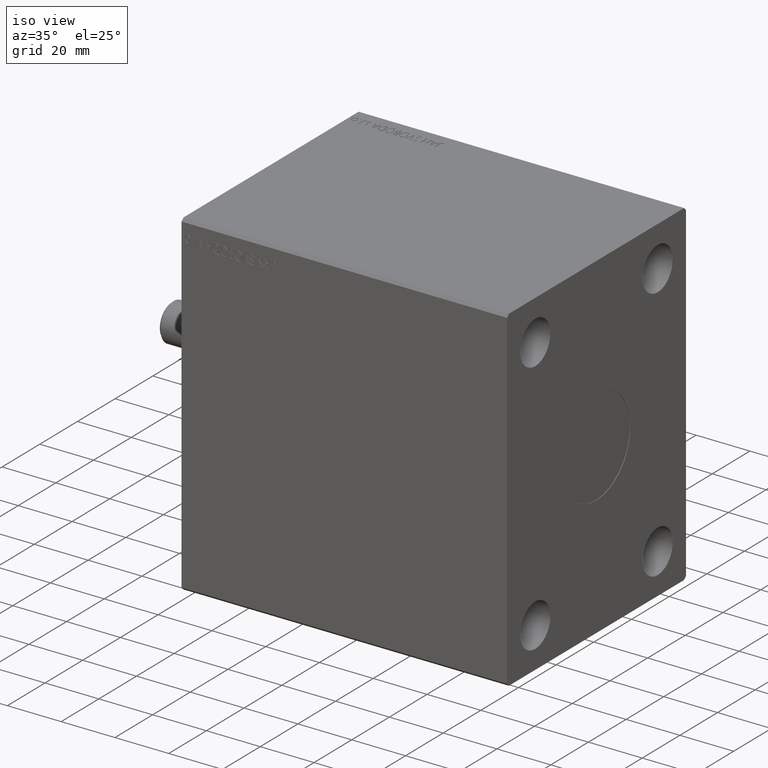
[diagram: clean part render]
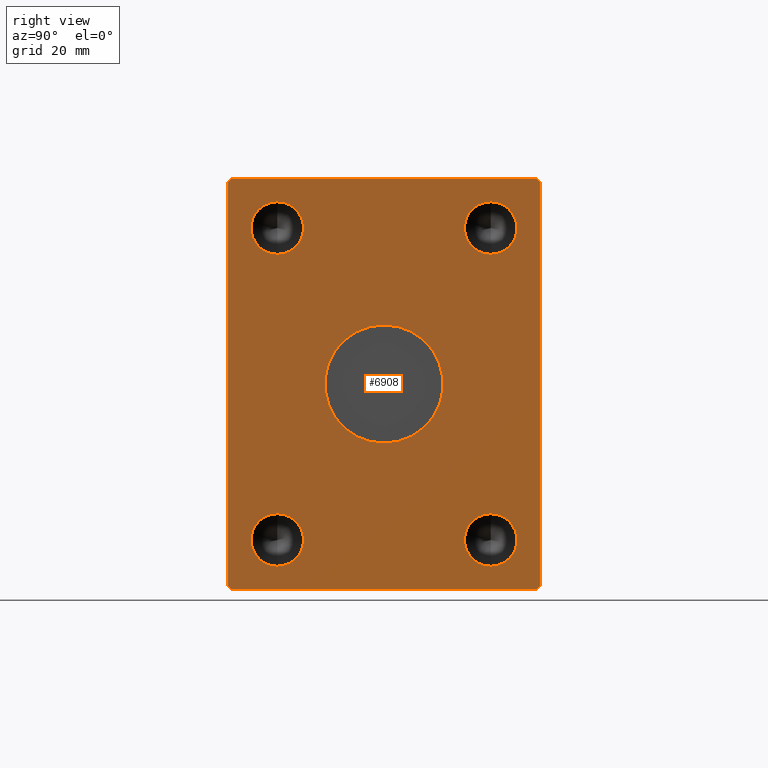
[diagram: tour spotlight — one face highlighted and labeled with its STEP entity id]
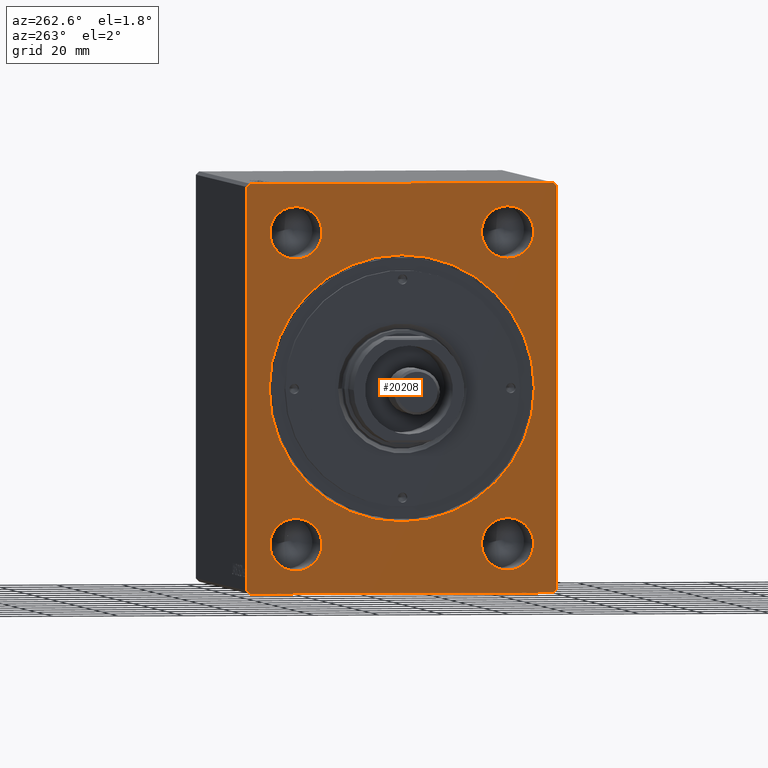
[diagram: tour spotlight — one face highlighted and labeled with its STEP entity id]
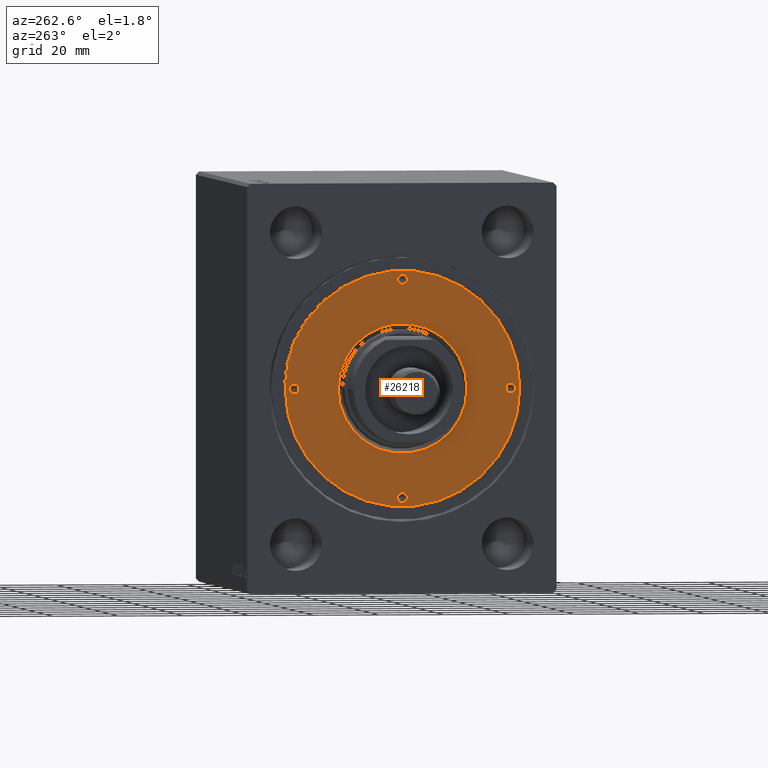
[diagram: tour spotlight — one face highlighted and labeled with its STEP entity id]
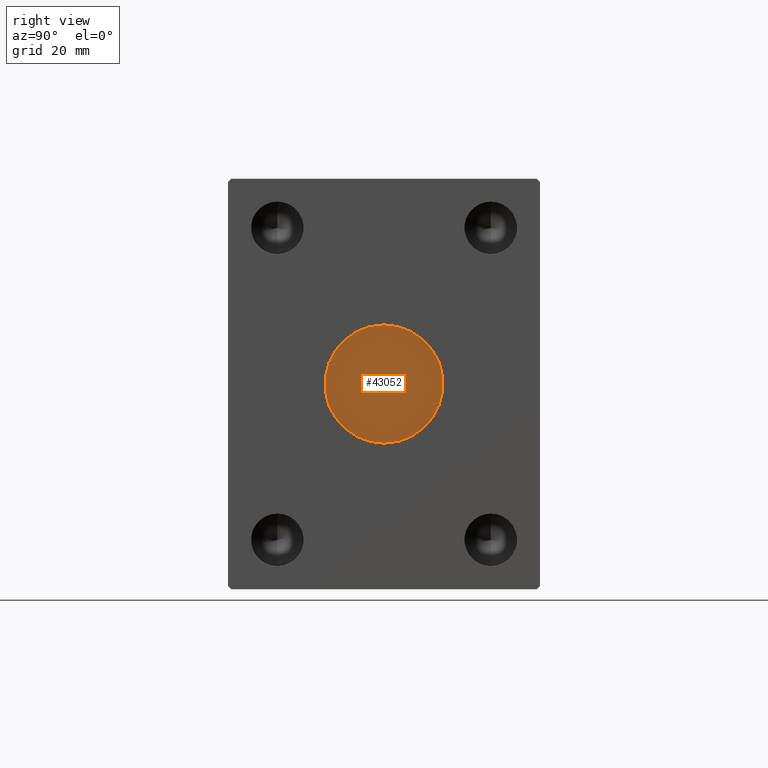
[diagram: tour spotlight — one face highlighted and labeled with its STEP entity id]
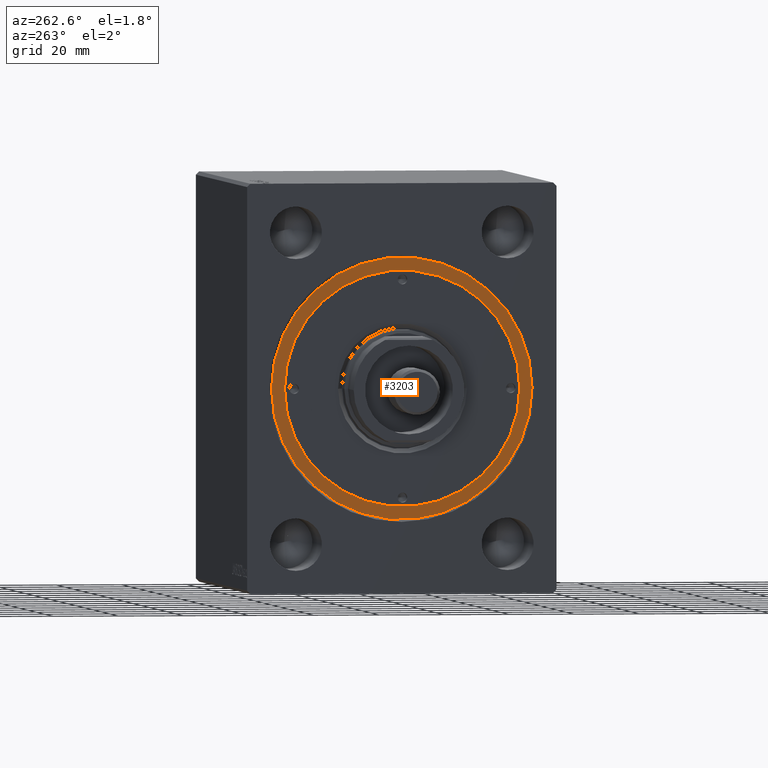
[diagram: tour spotlight — one face highlighted and labeled with its STEP entity id]
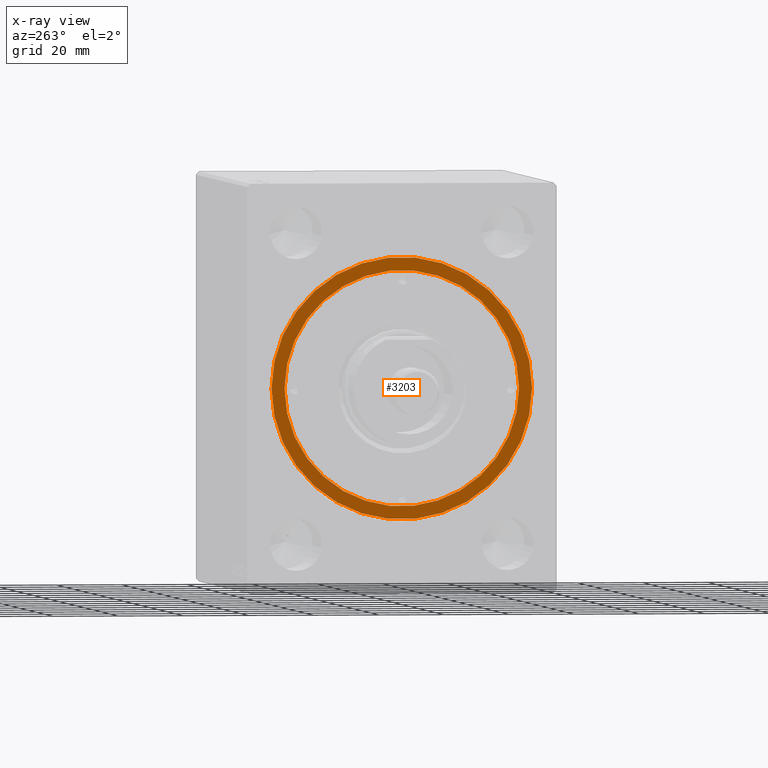
[diagram: x-ray of the same camera — body ghosted, this tour face saturated]
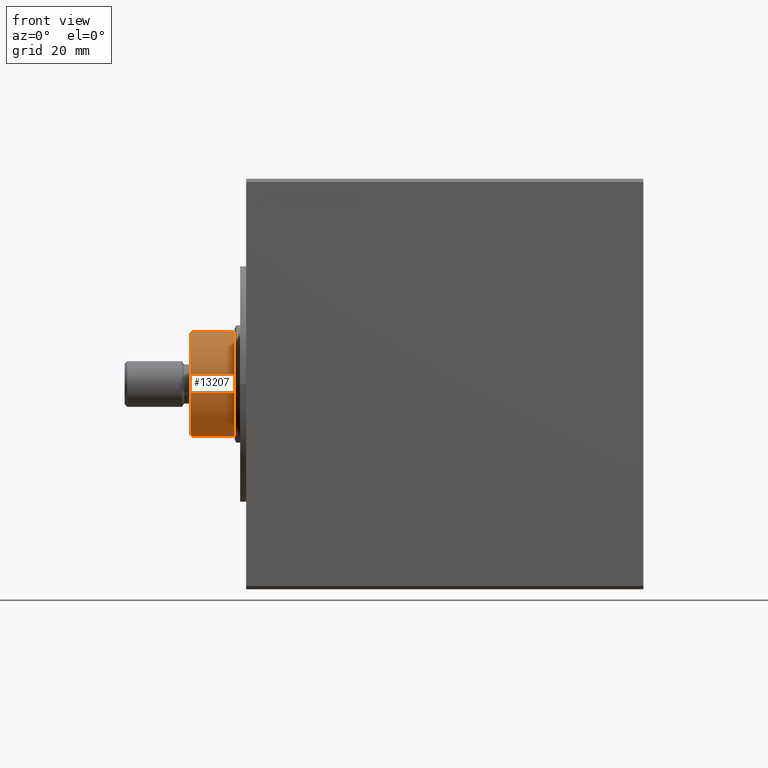
[diagram: tour spotlight — one face highlighted and labeled with its STEP entity id]
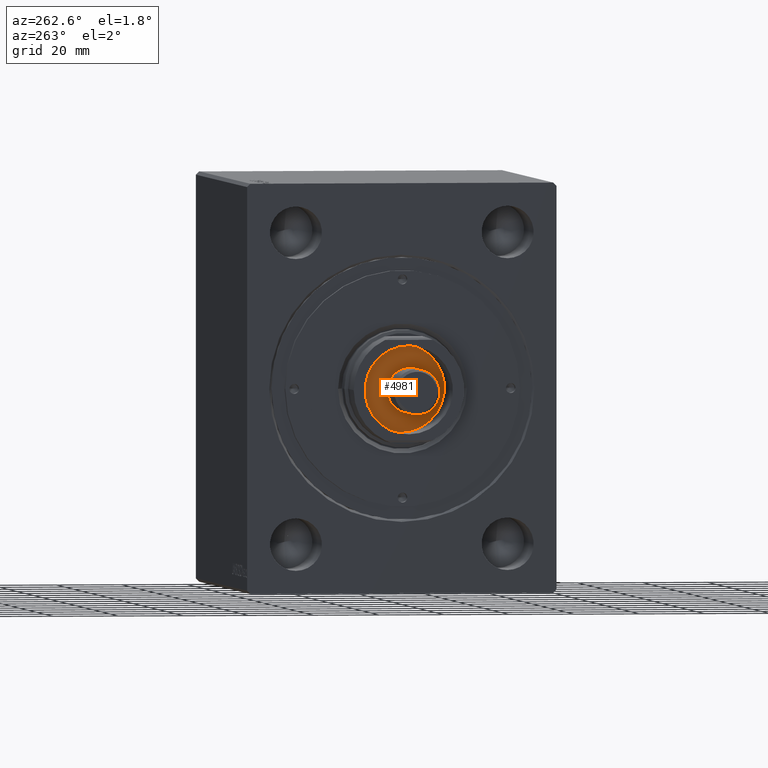
[diagram: tour spotlight — one face highlighted and labeled with its STEP entity id]
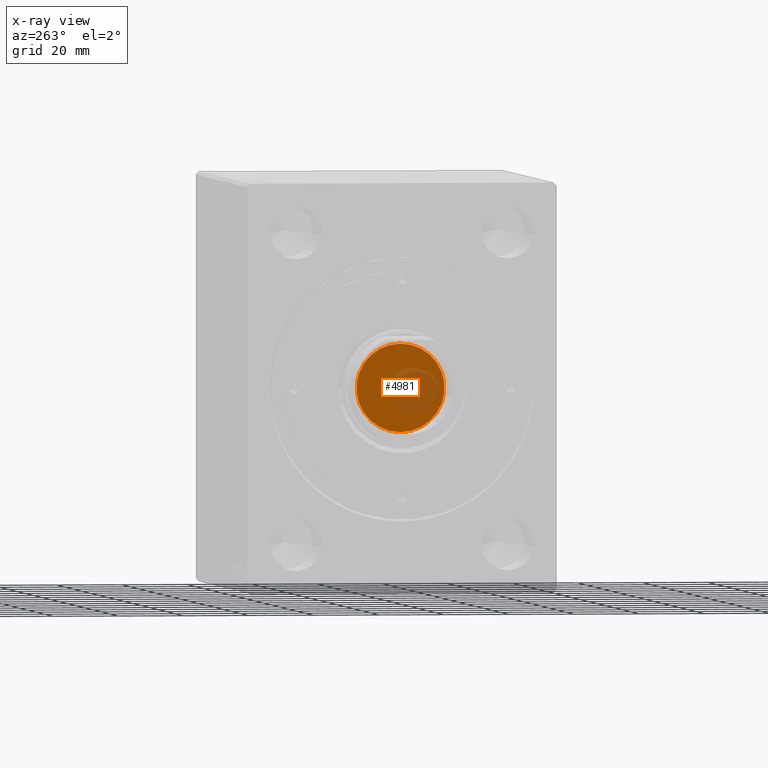
[diagram: x-ray of the same camera — body ghosted, this tour face saturated]
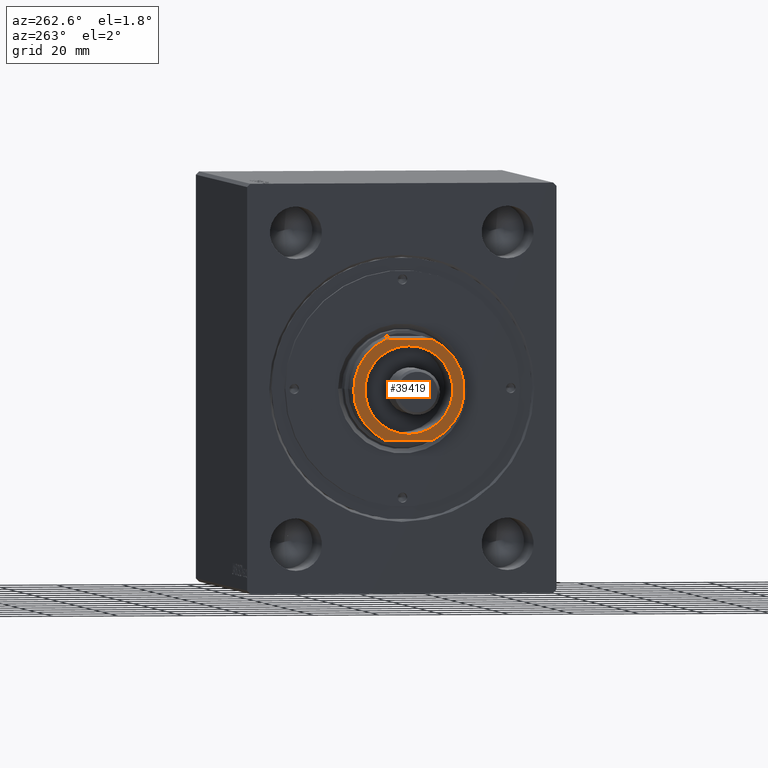
[diagram: tour spotlight — one face highlighted and labeled with its STEP entity id]
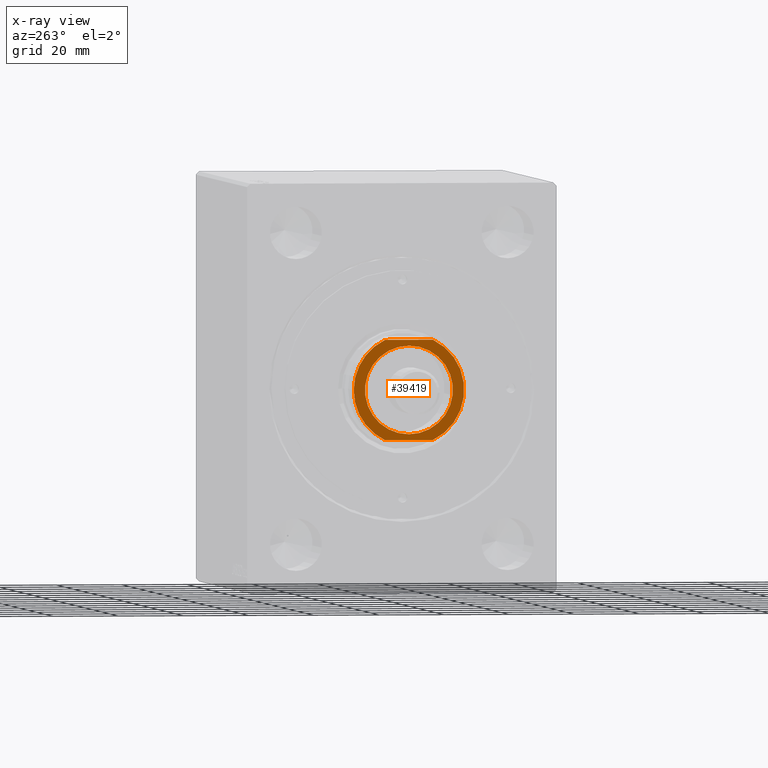
[diagram: x-ray of the same camera — body ghosted, this tour face saturated]
A machine part: a face-by-face anatomy tour. The part has 884 B-rep faces; the first image is the clean iso view, then the 8 largest visible faces are spotlighted one at a time (largest first), each with its STEP entity span.

Face 1 — right view, entity #6908. In plain terms, the highlighted planar face has unit normal (1, 0, 0).
Definition (entity closure, byte-faithful):
#197 = ORIENTED_EDGE ( 'NONE', *, *, #13606, .F. ) ;
#460 = ORIENTED_EDGE ( 'NONE', *, *, #24859, .F. ) ;
#482 = CARTESIAN_POINT ( 'NONE',  ( 121.0000000000000000, 0.000000000000000000, -18.00000000000000000 ) ) ;
#491 = EDGE_CURVE ( 'NONE', #28411, #4122, #18461, .T. ) ;
#617 = DIRECTION ( 'NONE',  ( 0.000000000000000000, 0.000000000000000000, -1.000000000000000000 ) ) ;
#640 = VERTEX_POINT ( 'NONE', #9878 ) ;
#891 = CARTESIAN_POINT ( 'NONE',  ( 121.0000000000000000, 32.50000000000000000, 47.50000000000000000 ) ) ;
#1144 = DIRECTION ( 'NONE',  ( 0.000000000000000000, 0.7071067811865574537, 0.7071067811865376918 ) ) ;
#1270 = CARTESIAN_POINT ( 'NONE',  ( 121.0000000000000000, 32.50000000000000000, 39.50000000000000711 ) ) ;
#1561 = VERTEX_POINT ( 'NONE', #482 ) ;
#1595 = CIRCLE ( 'NONE', #26653, 7.999999999999992895 ) ;
#2469 = DIRECTION ( 'NONE',  ( 0.000000000000000000, 0.000000000000000000, -1.000000000000000000 ) ) ;
#2691 = EDGE_CURVE ( 'NONE', #4491, #41523, #12319, .T. ) ;
#2734 = CARTESIAN_POINT ( 'NONE',  ( 121.0000000000000000, 32.50000000000000000, -55.49999999999999289 ) ) ;
#3139 = EDGE_CURVE ( 'NONE', #12020, #26320, #37793, .T. ) ;
#3670 = CIRCLE ( 'NONE', #12296, 18.00000000000000000 ) ;
#3942 = CARTESIAN_POINT ( 'NONE',  ( 121.0000000000000000, -32.50000000000000000, 47.50000000000000000 ) ) ;
#4005 = CARTESIAN_POINT ( 'NONE',  ( 121.0000000000000000, -32.50000000000000000, 39.50000000000000711 ) ) ;
#4113 = ORIENTED_EDGE ( 'NONE', *, *, #8069, .F. ) ;
#4122 = VERTEX_POINT ( 'NONE', #43586 ) ;
#4436 = CARTESIAN_POINT ( 'NONE',  ( 121.0000000000000000, 32.50000000000000000, 47.50000000000000000 ) ) ;
#4491 = VERTEX_POINT ( 'NONE', #30974 ) ;
#4576 = AXIS2_PLACEMENT_3D ( 'NONE', #15318, #43542, #28998 ) ;
#4720 = DIRECTION ( 'NONE',  ( 0.000000000000000000, 0.000000000000000000, -1.000000000000000000 ) ) ;
#4745 = CARTESIAN_POINT ( 'NONE',  ( 121.0000000000000000, 32.50000000000000000, -47.50000000000000000 ) ) ;
#5826 = CIRCLE ( 'NONE', #35902, 7.999999999999992895 ) ;
#5978 = CARTESIAN_POINT ( 'NONE',  ( 121.0000000000000000, 2.204364238465235428E-15, 18.00000000000000000 ) ) ;
#6615 = CARTESIAN_POINT ( 'NONE',  ( 121.0000000000000000, -46.50000000000000000, -62.50000000000001421 ) ) ;
#6795 = ORIENTED_EDGE ( 'NONE', *, *, #23427, .T. ) ;
#6908 = ADVANCED_FACE ( 'NONE', ( #14675, #38429, #41799, #7280, #31269, #20767 ), #24340, .T. ) ;
#7280 = FACE_BOUND ( 'NONE', #8555, .T. ) ;
#8069 = EDGE_CURVE ( 'NONE', #16974, #11078, #24533, .T. ) ;
#8328 = EDGE_CURVE ( 'NONE', #9625, #19028, #28116, .T. ) ;
#8555 = EDGE_LOOP ( 'NONE', ( #43944, #4113 ) ) ;
#8580 = CARTESIAN_POINT ( 'NONE',  ( 121.0000000000000000, -47.49999999999999289, -61.50000000000001421 ) ) ;
#8647 = EDGE_CURVE ( 'NONE', #34940, #640, #1595, .T. ) ;
#8917 = AXIS2_PLACEMENT_3D ( 'NONE', #4436, #27797, #617 ) ;
#8961 = DIRECTION ( 'NONE',  ( 0.000000000000000000, -1.000000000000000000, -7.461176240760460157E-17 ) ) ;
#9029 = ORIENTED_EDGE ( 'NONE', *, *, #8328, .F. ) ;
#9158 = VECTOR ( 'NONE', #28508, 1000.000000000000114 ) ;
#9193 = EDGE_CURVE ( 'NONE', #41523, #4491, #33219, .T. ) ;
#9442 = DIRECTION ( 'NONE',  ( 1.000000000000000000, -0.000000000000000000, -0.000000000000000000 ) ) ;
#9625 = VERTEX_POINT ( 'NONE', #4005 ) ;
#9661 = DIRECTION ( 'NONE',  ( 0.000000000000000000, 0.000000000000000000, -1.000000000000000000 ) ) ;
#9792 = CIRCLE ( 'NONE', #34855, 18.00000000000000000 ) ;
#9878 = CARTESIAN_POINT ( 'NONE',  ( 121.0000000000000000, 32.50000000000000000, 55.49999999999999289 ) ) ;
#9889 = EDGE_CURVE ( 'NONE', #26320, #28587, #21475, .T. ) ;
#11078 = VERTEX_POINT ( 'NONE', #2734 ) ;
#11637 = AXIS2_PLACEMENT_3D ( 'NONE', #38625, #11717, #24755 ) ;
#11717 = DIRECTION ( 'NONE',  ( 1.000000000000000000, -0.000000000000000000, -0.000000000000000000 ) ) ;
#11801 = VECTOR ( 'NONE', #20322, 1000.000000000000000 ) ;
#12020 = VERTEX_POINT ( 'NONE', #19890 ) ;
#12239 = DIRECTION ( 'NONE',  ( 0.000000000000000000, 1.692413147294445970E-16, -1.000000000000000000 ) ) ;
#12296 = AXIS2_PLACEMENT_3D ( 'NONE', #15955, #29622, #12362 ) ;
#12319 = CIRCLE ( 'NONE', #17980, 8.000000000000000000 ) ;
#12362 = DIRECTION ( 'NONE',  ( 0.000000000000000000, 0.000000000000000000, -1.000000000000000000 ) ) ;
#13007 = EDGE_LOOP ( 'NONE', ( #197, #460 ) ) ;
#13398 = VERTEX_POINT ( 'NONE', #8580 ) ;
#13606 = EDGE_CURVE ( 'NONE', #1561, #35054, #9792, .T. ) ;
#13800 = ORIENTED_EDGE ( 'NONE', *, *, #8647, .F. ) ;
#14290 = DIRECTION ( 'NONE',  ( 0.000000000000000000, -0.7071067811865474617, -0.7071067811865474617 ) ) ;
#14594 = CIRCLE ( 'NONE', #8917, 7.999999999999992895 ) ;
#14610 = VECTOR ( 'NONE', #14290, 1000.000000000000114 ) ;
#14675 = FACE_BOUND ( 'NONE', #13007, .T. ) ;
#14960 = EDGE_LOOP ( 'NONE', ( #22423, #19222 ) ) ;
#15318 = CARTESIAN_POINT ( 'NONE',  ( 121.0000000000000000, -32.50000000000000000, -47.50000000000000711 ) ) ;
#15328 = VECTOR ( 'NONE', #17804, 1000.000000000000114 ) ;
#15445 = LINE ( 'NONE', #6615, #11801 ) ;
#15639 = VECTOR ( 'NONE', #12239, 1000.000000000000000 ) ;
#15773 = ORIENTED_EDGE ( 'NONE', *, *, #3139, .T. ) ;
#15846 = VECTOR ( 'NONE', #1144, 999.9999999999998863 ) ;
#15868 = CARTESIAN_POINT ( 'NONE',  ( 121.0000000000000000, -32.50000000000000000, -55.50000000000000711 ) ) ;
#15955 = CARTESIAN_POINT ( 'NONE',  ( 121.0000000000000000, 0.000000000000000000, 0.000000000000000000 ) ) ;
#15987 = CARTESIAN_POINT ( 'NONE',  ( 121.0000000000000000, -32.50000000000000000, 55.49999999999999289 ) ) ;
#16974 = VERTEX_POINT ( 'NONE', #26888 ) ;
#17661 = DIRECTION ( 'NONE',  ( 1.000000000000000000, -0.000000000000000000, -0.000000000000000000 ) ) ;
#17804 = DIRECTION ( 'NONE',  ( 0.000000000000000000, -0.7071067811865474617, 0.7071067811865474617 ) ) ;
#17980 = AXIS2_PLACEMENT_3D ( 'NONE', #32992, #43734, #2469 ) ;
#18461 = LINE ( 'NONE', #35895, #15846 ) ;
#18886 = DIRECTION ( 'NONE',  ( 1.000000000000000000, -0.000000000000000000, -0.000000000000000000 ) ) ;
#19028 = VERTEX_POINT ( 'NONE', #15987 ) ;
#19222 = ORIENTED_EDGE ( 'NONE', *, *, #2691, .F. ) ;
#19844 = EDGE_CURVE ( 'NONE', #13398, #26679, #32296, .T. ) ;
#19890 = CARTESIAN_POINT ( 'NONE',  ( 121.0000000000000000, 46.50000000000000000, 62.49999999999998579 ) ) ;
#20322 = DIRECTION ( 'NONE',  ( 0.000000000000000000, 1.000000000000000000, 1.492235248152092278E-16 ) ) ;
#20767 = FACE_OUTER_BOUND ( 'NONE', #43060, .T. ) ;
#20848 = CARTESIAN_POINT ( 'NONE',  ( 121.0000000000000000, 46.50000000000000000, -62.50000000000000000 ) ) ;
#21229 = CARTESIAN_POINT ( 'NONE',  ( 121.0000000000000000, 0.000000000000000000, 0.000000000000000000 ) ) ;
#21333 = ORIENTED_EDGE ( 'NONE', *, *, #41298, .F. ) ;
#21386 = LINE ( 'NONE', #30554, #15328 ) ;
#21475 = LINE ( 'NONE', #42071, #14610 ) ;
#22423 = ORIENTED_EDGE ( 'NONE', *, *, #9193, .F. ) ;
#22475 = DIRECTION ( 'NONE',  ( 0.000000000000000000, 0.000000000000000000, -1.000000000000000000 ) ) ;
#22603 = ORIENTED_EDGE ( 'NONE', *, *, #27010, .F. ) ;
#23427 = EDGE_CURVE ( 'NONE', #28587, #13398, #29283, .T. ) ;
#23930 = DIRECTION ( 'NONE',  ( 0.000000000000000000, 0.000000000000000000, -1.000000000000000000 ) ) ;
#24272 = DIRECTION ( 'NONE',  ( 1.000000000000000000, -0.000000000000000000, -0.000000000000000000 ) ) ;
#24340 = PLANE ( 'NONE',  #24499 ) ;
#24499 = AXIS2_PLACEMENT_3D ( 'NONE', #41127, #34404, #35052 ) ;
#24533 = CIRCLE ( 'NONE', #32383, 7.999999999999992895 ) ;
#24755 = DIRECTION ( 'NONE',  ( 0.000000000000000000, 0.000000000000000000, -1.000000000000000000 ) ) ;
#24792 = DIRECTION ( 'NONE',  ( 1.000000000000000000, 0.000000000000000000, 0.000000000000000000 ) ) ;
#24844 = EDGE_CURVE ( 'NONE', #11078, #16974, #5826, .T. ) ;
#24859 = EDGE_CURVE ( 'NONE', #35054, #1561, #3670, .T. ) ;
#26286 = CARTESIAN_POINT ( 'NONE',  ( 121.0000000000000000, -46.50000000000001421, 62.49999999999997868 ) ) ;
#26320 = VERTEX_POINT ( 'NONE', #26286 ) ;
#26653 = AXIS2_PLACEMENT_3D ( 'NONE', #891, #24272, #4720 ) ;
#26679 = VERTEX_POINT ( 'NONE', #43038 ) ;
#26888 = CARTESIAN_POINT ( 'NONE',  ( 121.0000000000000000, 32.50000000000000000, -39.50000000000000711 ) ) ;
#27010 = EDGE_CURVE ( 'NONE', #19028, #9625, #32962, .T. ) ;
#27170 = CARTESIAN_POINT ( 'NONE',  ( 121.0000000000000000, 47.50000000000001421, -61.50000000000001421 ) ) ;
#27394 = DIRECTION ( 'NONE',  ( 0.000000000000000000, -1.128275431529630729E-16, 1.000000000000000000 ) ) ;
#27432 = ORIENTED_EDGE ( 'NONE', *, *, #40325, .T. ) ;
#27797 = DIRECTION ( 'NONE',  ( 1.000000000000000000, -0.000000000000000000, -0.000000000000000000 ) ) ;
#28116 = CIRCLE ( 'NONE', #11637, 7.999999999999992895 ) ;
#28411 = VERTEX_POINT ( 'NONE', #20848 ) ;
#28508 = DIRECTION ( 'NONE',  ( 0.000000000000000000, 0.7071067811865451302, -0.7071067811865500152 ) ) ;
#28587 = VERTEX_POINT ( 'NONE', #41333 ) ;
#28743 = ORIENTED_EDGE ( 'NONE', *, *, #491, .T. ) ;
#28998 = DIRECTION ( 'NONE',  ( 0.000000000000000000, 0.000000000000000000, -1.000000000000000000 ) ) ;
#29283 = LINE ( 'NONE', #35564, #15639 ) ;
#29622 = DIRECTION ( 'NONE',  ( 1.000000000000000000, 0.000000000000000000, 0.000000000000000000 ) ) ;
#30245 = CARTESIAN_POINT ( 'NONE',  ( 121.0000000000000000, 47.50000000000000000, 61.49999999999998579 ) ) ;
#30554 = CARTESIAN_POINT ( 'NONE',  ( 121.0000000000000000, 47.50000000000000000, 61.49999999999998579 ) ) ;
#30974 = CARTESIAN_POINT ( 'NONE',  ( 121.0000000000000000, -32.50000000000000000, -39.50000000000000711 ) ) ;
#31269 = FACE_BOUND ( 'NONE', #35894, .T. ) ;
#31634 = LINE ( 'NONE', #27170, #35347 ) ;
#32296 = LINE ( 'NONE', #43428, #9158 ) ;
#32383 = AXIS2_PLACEMENT_3D ( 'NONE', #4745, #18886, #22475 ) ;
#32962 = CIRCLE ( 'NONE', #40118, 7.999999999999992895 ) ;
#32992 = CARTESIAN_POINT ( 'NONE',  ( 121.0000000000000000, -32.50000000000000000, -47.50000000000000711 ) ) ;
#33219 = CIRCLE ( 'NONE', #4576, 8.000000000000000000 ) ;
#34180 = ORIENTED_EDGE ( 'NONE', *, *, #9889, .T. ) ;
#34232 = ORIENTED_EDGE ( 'NONE', *, *, #43398, .T. ) ;
#34404 = DIRECTION ( 'NONE',  ( 1.000000000000000000, 0.000000000000000000, 0.000000000000000000 ) ) ;
#34688 = ORIENTED_EDGE ( 'NONE', *, *, #36759, .T. ) ;
#34855 = AXIS2_PLACEMENT_3D ( 'NONE', #21229, #24792, #41816 ) ;
#34940 = VERTEX_POINT ( 'NONE', #1270 ) ;
#35052 = DIRECTION ( 'NONE',  ( 0.000000000000000000, 0.000000000000000000, -1.000000000000000000 ) ) ;
#35054 = VERTEX_POINT ( 'NONE', #5978 ) ;
#35223 = VECTOR ( 'NONE', #8961, 1000.000000000000000 ) ;
#35347 = VECTOR ( 'NONE', #27394, 1000.000000000000000 ) ;
#35564 = CARTESIAN_POINT ( 'NONE',  ( 121.0000000000000000, -47.50000000000001421, 61.49999999999997868 ) ) ;
#35894 = EDGE_LOOP ( 'NONE', ( #9029, #22603 ) ) ;
#35895 = CARTESIAN_POINT ( 'NONE',  ( 121.0000000000000000, 46.50000000000000000, -62.50000000000000000 ) ) ;
#35902 = AXIS2_PLACEMENT_3D ( 'NONE', #40139, #9442, #9661 ) ;
#36759 = EDGE_CURVE ( 'NONE', #4122, #36909, #31634, .T. ) ;
#36889 = ORIENTED_EDGE ( 'NONE', *, *, #19844, .T. ) ;
#36909 = VERTEX_POINT ( 'NONE', #30245 ) ;
#37566 = CARTESIAN_POINT ( 'NONE',  ( 121.0000000000000000, 46.50000000000000000, 62.49999999999998579 ) ) ;
#37793 = LINE ( 'NONE', #37566, #35223 ) ;
#38429 = FACE_BOUND ( 'NONE', #40640, .T. ) ;
#38625 = CARTESIAN_POINT ( 'NONE',  ( 121.0000000000000000, -32.50000000000000000, 47.50000000000000000 ) ) ;
#40118 = AXIS2_PLACEMENT_3D ( 'NONE', #3942, #17661, #23930 ) ;
#40139 = CARTESIAN_POINT ( 'NONE',  ( 121.0000000000000000, 32.50000000000000000, -47.50000000000000000 ) ) ;
#40325 = EDGE_CURVE ( 'NONE', #36909, #12020, #21386, .T. ) ;
#40640 = EDGE_LOOP ( 'NONE', ( #13800, #21333 ) ) ;
#41127 = CARTESIAN_POINT ( 'NONE',  ( 121.0000000000000000, 0.000000000000000000, 0.000000000000000000 ) ) ;
#41298 = EDGE_CURVE ( 'NONE', #640, #34940, #14594, .T. ) ;
#41333 = CARTESIAN_POINT ( 'NONE',  ( 121.0000000000000000, -47.50000000000001421, 61.49999999999997868 ) ) ;
#41523 = VERTEX_POINT ( 'NONE', #15868 ) ;
#41799 = FACE_BOUND ( 'NONE', #14960, .T. ) ;
#41816 = DIRECTION ( 'NONE',  ( 0.000000000000000000, 0.000000000000000000, -1.000000000000000000 ) ) ;
#42071 = CARTESIAN_POINT ( 'NONE',  ( 121.0000000000000000, -46.50000000000001421, 62.49999999999997868 ) ) ;
#43038 = CARTESIAN_POINT ( 'NONE',  ( 121.0000000000000000, -46.50000000000000000, -62.50000000000001421 ) ) ;
#43060 = EDGE_LOOP ( 'NONE', ( #27432, #15773, #34180, #6795, #36889, #34232, #28743, #34688 ) ) ;
#43398 = EDGE_CURVE ( 'NONE', #26679, #28411, #15445, .T. ) ;
#43428 = CARTESIAN_POINT ( 'NONE',  ( 121.0000000000000000, -47.49999999999999289, -61.50000000000001421 ) ) ;
#43542 = DIRECTION ( 'NONE',  ( 1.000000000000000000, -0.000000000000000000, -0.000000000000000000 ) ) ;
#43586 = CARTESIAN_POINT ( 'NONE',  ( 121.0000000000000000, 47.50000000000001421, -61.50000000000001421 ) ) ;
#43734 = DIRECTION ( 'NONE',  ( 1.000000000000000000, -0.000000000000000000, -0.000000000000000000 ) ) ;
#43944 = ORIENTED_EDGE ( 'NONE', *, *, #24844, .F. ) ;

Face 2 — auxiliary view, entity #20208. In plain terms, the highlighted planar face has unit normal (1, 0, 0).
Definition (entity closure, byte-faithful):
#351 = ORIENTED_EDGE ( 'NONE', *, *, #25019, .F. ) ;
#620 = DIRECTION ( 'NONE',  ( 0.000000000000000000, -0.7071067811865474617, 0.7071067811865474617 ) ) ;
#779 = CARTESIAN_POINT ( 'NONE',  ( 0.000000000000000000, 46.50000000000000000, -62.50000000000000000 ) ) ;
#788 = ORIENTED_EDGE ( 'NONE', *, *, #29096, .F. ) ;
#1174 = FACE_BOUND ( 'NONE', #24606, .T. ) ;
#1238 = CARTESIAN_POINT ( 'NONE',  ( 0.000000000000000000, 47.50000000000001421, -61.50000000000001421 ) ) ;
#1571 = CIRCLE ( 'NONE', #30238, 7.999999999999992895 ) ;
#2074 = DIRECTION ( 'NONE',  ( 0.000000000000000000, -1.128275431529630729E-16, 1.000000000000000000 ) ) ;
#2282 = EDGE_CURVE ( 'NONE', #24042, #23005, #40920, .T. ) ;
#2289 = LINE ( 'NONE', #26318, #40436 ) ;
#2497 = ORIENTED_EDGE ( 'NONE', *, *, #41166, .F. ) ;
#2811 = ORIENTED_EDGE ( 'NONE', *, *, #18721, .F. ) ;
#2843 = VECTOR ( 'NONE', #32003, 1000.000000000000000 ) ;
#3117 = LINE ( 'NONE', #12479, #2843 ) ;
#3227 = EDGE_CURVE ( 'NONE', #29665, #40276, #15909, .T. ) ;
#3315 = LINE ( 'NONE', #6035, #13894 ) ;
#3612 = CARTESIAN_POINT ( 'NONE',  ( 4.898587196589409870E-16, 32.50000000000000000, -55.49999999999999289 ) ) ;
#4090 = CIRCLE ( 'NONE', #37008, 7.999999999999992895 ) ;
#4374 = VECTOR ( 'NONE', #25787, 1000.000000000000114 ) ;
#4522 = DIRECTION ( 'NONE',  ( -1.000000000000000000, -0.000000000000000000, -0.000000000000000000 ) ) ;
#4754 = EDGE_CURVE ( 'NONE', #17677, #24247, #41399, .T. ) ;
#4824 = DIRECTION ( 'NONE',  ( -1.000000000000000000, -0.000000000000000000, -0.000000000000000000 ) ) ;
#5078 = VECTOR ( 'NONE', #20587, 1000.000000000000114 ) ;
#5268 = DIRECTION ( 'NONE',  ( 0.000000000000000000, 0.000000000000000000, 1.000000000000000000 ) ) ;
#5940 = DIRECTION ( 'NONE',  ( -1.000000000000000000, -0.000000000000000000, -0.000000000000000000 ) ) ;
#6035 = CARTESIAN_POINT ( 'NONE',  ( 0.000000000000000000, -47.50000000000001421, 61.49999999999997868 ) ) ;
#6713 = AXIS2_PLACEMENT_3D ( 'NONE', #25027, #32179, #5268 ) ;
#7291 = ORIENTED_EDGE ( 'NONE', *, *, #4754, .F. ) ;
#7301 = AXIS2_PLACEMENT_3D ( 'NONE', #15797, #18955, #29467 ) ;
#7488 = CARTESIAN_POINT ( 'NONE',  ( 0.000000000000000000, 0.000000000000000000, 0.000000000000000000 ) ) ;
#7508 = VERTEX_POINT ( 'NONE', #42792 ) ;
#7609 = CARTESIAN_POINT ( 'NONE',  ( 4.898587196589409870E-16, -32.50000000000000000, 55.49999999999999289 ) ) ;
#7679 = VERTEX_POINT ( 'NONE', #44107 ) ;
#7765 = VERTEX_POINT ( 'NONE', #14961 ) ;
#8002 = CARTESIAN_POINT ( 'NONE',  ( 0.000000000000000000, -47.50000000000001421, 61.49999999999997868 ) ) ;
#8190 = CARTESIAN_POINT ( 'NONE',  ( 4.898587196589409870E-16, 32.50000000000000000, 47.50000000000000000 ) ) ;
#9307 = CARTESIAN_POINT ( 'NONE',  ( 4.898587196589409870E-16, -32.50000000000000000, -47.50000000000000711 ) ) ;
#9536 = VECTOR ( 'NONE', #11274, 1000.000000000000000 ) ;
#10347 = CARTESIAN_POINT ( 'NONE',  ( 0.000000000000000000, 0.000000000000000000, 0.000000000000000000 ) ) ;
#10786 = LINE ( 'NONE', #24480, #33401 ) ;
#11202 = VERTEX_POINT ( 'NONE', #27665 ) ;
#11274 = DIRECTION ( 'NONE',  ( 0.000000000000000000, 1.000000000000000000, 1.492235248152092278E-16 ) ) ;
#11488 = CARTESIAN_POINT ( 'NONE',  ( 0.000000000000000000, -46.50000000000000000, -62.50000000000001421 ) ) ;
#12067 = CARTESIAN_POINT ( 'NONE',  ( 4.898587196589409870E-16, 32.50000000000000000, -39.50000000000000711 ) ) ;
#12479 = CARTESIAN_POINT ( 'NONE',  ( 0.000000000000000000, 46.50000000000000000, 62.49999999999998579 ) ) ;
#12545 = CARTESIAN_POINT ( 'NONE',  ( 0.000000000000000000, -47.49999999999999289, -61.50000000000001421 ) ) ;
#12667 = CARTESIAN_POINT ( 'NONE',  ( 0.000000000000000000, 4.984312472529728892E-15, -40.70000000000001705 ) ) ;
#12953 = ORIENTED_EDGE ( 'NONE', *, *, #36062, .F. ) ;
#13702 = CARTESIAN_POINT ( 'NONE',  ( 4.898587196589409870E-16, 32.50000000000000000, -47.50000000000000000 ) ) ;
#13778 = VERTEX_POINT ( 'NONE', #44388 ) ;
#13894 = VECTOR ( 'NONE', #26892, 1000.000000000000000 ) ;
#14160 = AXIS2_PLACEMENT_3D ( 'NONE', #7488, #31260, #34829 ) ;
#14549 = CARTESIAN_POINT ( 'NONE',  ( 0.000000000000000000, 47.50000000000000000, 61.49999999999998579 ) ) ;
#14695 = AXIS2_PLACEMENT_3D ( 'NONE', #32754, #42842, #19977 ) ;
#14750 = EDGE_CURVE ( 'NONE', #23072, #42906, #4090, .T. ) ;
#14884 = FACE_OUTER_BOUND ( 'NONE', #35239, .T. ) ;
#14961 = CARTESIAN_POINT ( 'NONE',  ( 4.898587196589409870E-16, -32.50000000000000000, -55.50000000000000711 ) ) ;
#15797 = CARTESIAN_POINT ( 'NONE',  ( 4.898587196589409870E-16, -32.50000000000000000, 47.50000000000000000 ) ) ;
#15909 = CIRCLE ( 'NONE', #25128, 7.999999999999992895 ) ;
#16826 = EDGE_CURVE ( 'NONE', #27090, #42502, #10786, .T. ) ;
#17677 = VERTEX_POINT ( 'NONE', #33718 ) ;
#18051 = FACE_BOUND ( 'NONE', #26081, .T. ) ;
#18547 = ORIENTED_EDGE ( 'NONE', *, *, #37801, .F. ) ;
#18660 = VERTEX_POINT ( 'NONE', #42280 ) ;
#18704 = ORIENTED_EDGE ( 'NONE', *, *, #43068, .F. ) ;
#18721 = EDGE_CURVE ( 'NONE', #7765, #7679, #33430, .T. ) ;
#18955 = DIRECTION ( 'NONE',  ( -1.000000000000000000, -0.000000000000000000, -0.000000000000000000 ) ) ;
#19640 = DIRECTION ( 'NONE',  ( 0.000000000000000000, 0.000000000000000000, 1.000000000000000000 ) ) ;
#19745 = EDGE_LOOP ( 'NONE', ( #26503, #29930 ) ) ;
#19902 = CARTESIAN_POINT ( 'NONE',  ( 4.898587196589409870E-16, 32.50000000000000000, 47.50000000000000000 ) ) ;
#19977 = DIRECTION ( 'NONE',  ( 0.000000000000000000, 0.000000000000000000, 1.000000000000000000 ) ) ;
#20069 = VERTEX_POINT ( 'NONE', #12667 ) ;
#20208 = ADVANCED_FACE ( 'NONE', ( #18051, #1174, #28346, #42004, #24978, #14884 ), #38633, .F. ) ;
#20469 = ORIENTED_EDGE ( 'NONE', *, *, #14750, .F. ) ;
#20587 = DIRECTION ( 'NONE',  ( 0.000000000000000000, -0.7071067811865474617, -0.7071067811865474617 ) ) ;
#21540 = AXIS2_PLACEMENT_3D ( 'NONE', #10347, #23811, #31409 ) ;
#21798 = DIRECTION ( 'NONE',  ( 1.000000000000000000, 0.000000000000000000, 0.000000000000000000 ) ) ;
#22034 = EDGE_CURVE ( 'NONE', #20069, #43874, #28560, .T. ) ;
#22253 = CARTESIAN_POINT ( 'NONE',  ( 4.898587196589409870E-16, -32.50000000000000000, 47.50000000000000000 ) ) ;
#22495 = LINE ( 'NONE', #11488, #9536 ) ;
#23005 = VERTEX_POINT ( 'NONE', #7609 ) ;
#23072 = VERTEX_POINT ( 'NONE', #12067 ) ;
#23667 = CIRCLE ( 'NONE', #21540, 40.70000000000001705 ) ;
#23811 = DIRECTION ( 'NONE',  ( 1.000000000000000000, 0.000000000000000000, 0.000000000000000000 ) ) ;
#23925 = CIRCLE ( 'NONE', #6713, 8.000000000000000000 ) ;
#24042 = VERTEX_POINT ( 'NONE', #37377 ) ;
#24247 = VERTEX_POINT ( 'NONE', #8002 ) ;
#24434 = LINE ( 'NONE', #14549, #36779 ) ;
#24480 = CARTESIAN_POINT ( 'NONE',  ( 0.000000000000000000, 46.50000000000000000, -62.50000000000000000 ) ) ;
#24606 = EDGE_LOOP ( 'NONE', ( #12953, #2811 ) ) ;
#24978 = FACE_BOUND ( 'NONE', #19745, .T. ) ;
#25019 = EDGE_CURVE ( 'NONE', #11202, #17677, #3117, .T. ) ;
#25027 = CARTESIAN_POINT ( 'NONE',  ( 4.898587196589409870E-16, -32.50000000000000000, -47.50000000000000711 ) ) ;
#25128 = AXIS2_PLACEMENT_3D ( 'NONE', #8190, #4824, #32175 ) ;
#25787 = DIRECTION ( 'NONE',  ( 0.000000000000000000, 0.7071067811865451302, -0.7071067811865500152 ) ) ;
#25805 = ORIENTED_EDGE ( 'NONE', *, *, #26898, .F. ) ;
#26081 = EDGE_LOOP ( 'NONE', ( #43882, #25805 ) ) ;
#26318 = CARTESIAN_POINT ( 'NONE',  ( 0.000000000000000000, 47.50000000000001421, -61.50000000000001421 ) ) ;
#26452 = EDGE_CURVE ( 'NONE', #43874, #20069, #23667, .T. ) ;
#26503 = ORIENTED_EDGE ( 'NONE', *, *, #26452, .T. ) ;
#26715 = DIRECTION ( 'NONE',  ( -1.000000000000000000, -0.000000000000000000, -0.000000000000000000 ) ) ;
#26892 = DIRECTION ( 'NONE',  ( 0.000000000000000000, 1.692413147294445970E-16, -1.000000000000000000 ) ) ;
#26898 = EDGE_CURVE ( 'NONE', #40276, #29665, #27246, .T. ) ;
#27090 = VERTEX_POINT ( 'NONE', #779 ) ;
#27246 = CIRCLE ( 'NONE', #28680, 7.999999999999992895 ) ;
#27250 = EDGE_LOOP ( 'NONE', ( #27412, #42244 ) ) ;
#27412 = ORIENTED_EDGE ( 'NONE', *, *, #31756, .F. ) ;
#27665 = CARTESIAN_POINT ( 'NONE',  ( 0.000000000000000000, 46.50000000000000000, 62.49999999999998579 ) ) ;
#28346 = FACE_BOUND ( 'NONE', #37561, .T. ) ;
#28560 = CIRCLE ( 'NONE', #43554, 40.70000000000001705 ) ;
#28680 = AXIS2_PLACEMENT_3D ( 'NONE', #19902, #36459, #32896 ) ;
#29096 = EDGE_CURVE ( 'NONE', #7508, #13778, #32946, .T. ) ;
#29467 = DIRECTION ( 'NONE',  ( 0.000000000000000000, 0.000000000000000000, 1.000000000000000000 ) ) ;
#29665 = VERTEX_POINT ( 'NONE', #29704 ) ;
#29704 = CARTESIAN_POINT ( 'NONE',  ( 4.898587196589409870E-16, 32.50000000000000000, 55.49999999999999289 ) ) ;
#29930 = ORIENTED_EDGE ( 'NONE', *, *, #22034, .T. ) ;
#30238 = AXIS2_PLACEMENT_3D ( 'NONE', #22253, #4522, #36115 ) ;
#30475 = CARTESIAN_POINT ( 'NONE',  ( 0.000000000000000000, 0.000000000000000000, 40.70000000000001705 ) ) ;
#30641 = CARTESIAN_POINT ( 'NONE',  ( 0.000000000000000000, -46.50000000000001421, 62.49999999999997868 ) ) ;
#31260 = DIRECTION ( 'NONE',  ( 1.000000000000000000, 0.000000000000000000, 0.000000000000000000 ) ) ;
#31409 = DIRECTION ( 'NONE',  ( 0.000000000000000000, 0.000000000000000000, -1.000000000000000000 ) ) ;
#31502 = ORIENTED_EDGE ( 'NONE', *, *, #34338, .F. ) ;
#31756 = EDGE_CURVE ( 'NONE', #23005, #24042, #1571, .T. ) ;
#32003 = DIRECTION ( 'NONE',  ( 0.000000000000000000, -1.000000000000000000, -7.461176240760460157E-17 ) ) ;
#32175 = DIRECTION ( 'NONE',  ( 0.000000000000000000, 0.000000000000000000, 1.000000000000000000 ) ) ;
#32179 = DIRECTION ( 'NONE',  ( -1.000000000000000000, -0.000000000000000000, -0.000000000000000000 ) ) ;
#32754 = CARTESIAN_POINT ( 'NONE',  ( 4.898587196589409870E-16, 32.50000000000000000, -47.50000000000000000 ) ) ;
#32896 = DIRECTION ( 'NONE',  ( 0.000000000000000000, 0.000000000000000000, 1.000000000000000000 ) ) ;
#32946 = LINE ( 'NONE', #12545, #4374 ) ;
#33209 = DIRECTION ( 'NONE',  ( 0.000000000000000000, 0.000000000000000000, 1.000000000000000000 ) ) ;
#33401 = VECTOR ( 'NONE', #34982, 999.9999999999998863 ) ;
#33430 = CIRCLE ( 'NONE', #41324, 8.000000000000000000 ) ;
#33718 = CARTESIAN_POINT ( 'NONE',  ( 0.000000000000000000, -46.50000000000001421, 62.49999999999997868 ) ) ;
#34338 = EDGE_CURVE ( 'NONE', #13778, #27090, #22495, .T. ) ;
#34585 = CARTESIAN_POINT ( 'NONE',  ( 4.898587196589409870E-16, 32.50000000000000000, 39.50000000000000711 ) ) ;
#34829 = DIRECTION ( 'NONE',  ( 0.000000000000000000, 0.000000000000000000, -1.000000000000000000 ) ) ;
#34982 = DIRECTION ( 'NONE',  ( 0.000000000000000000, 0.7071067811865574537, 0.7071067811865376918 ) ) ;
#35239 = EDGE_LOOP ( 'NONE', ( #18547, #39083, #39040, #31502, #788, #2497, #7291, #351 ) ) ;
#35661 = CARTESIAN_POINT ( 'NONE',  ( 0.000000000000000000, 0.000000000000000000, 0.000000000000000000 ) ) ;
#36062 = EDGE_CURVE ( 'NONE', #7679, #7765, #23925, .T. ) ;
#36115 = DIRECTION ( 'NONE',  ( 0.000000000000000000, 0.000000000000000000, 1.000000000000000000 ) ) ;
#36459 = DIRECTION ( 'NONE',  ( -1.000000000000000000, -0.000000000000000000, -0.000000000000000000 ) ) ;
#36779 = VECTOR ( 'NONE', #620, 1000.000000000000114 ) ;
#37008 = AXIS2_PLACEMENT_3D ( 'NONE', #13702, #26715, #33209 ) ;
#37377 = CARTESIAN_POINT ( 'NONE',  ( 4.898587196589409870E-16, -32.50000000000000000, 39.50000000000000711 ) ) ;
#37552 = CIRCLE ( 'NONE', #14695, 7.999999999999992895 ) ;
#37561 = EDGE_LOOP ( 'NONE', ( #20469, #18704 ) ) ;
#37801 = EDGE_CURVE ( 'NONE', #18660, #11202, #24434, .T. ) ;
#38633 = PLANE ( 'NONE',  #14160 ) ;
#39040 = ORIENTED_EDGE ( 'NONE', *, *, #16826, .F. ) ;
#39083 = ORIENTED_EDGE ( 'NONE', *, *, #39108, .F. ) ;
#39108 = EDGE_CURVE ( 'NONE', #42502, #18660, #2289, .T. ) ;
#40276 = VERTEX_POINT ( 'NONE', #34585 ) ;
#40436 = VECTOR ( 'NONE', #2074, 1000.000000000000000 ) ;
#40920 = CIRCLE ( 'NONE', #7301, 7.999999999999992895 ) ;
#41166 = EDGE_CURVE ( 'NONE', #24247, #7508, #3315, .T. ) ;
#41324 = AXIS2_PLACEMENT_3D ( 'NONE', #9307, #5940, #19640 ) ;
#41399 = LINE ( 'NONE', #30641, #5078 ) ;
#42004 = FACE_BOUND ( 'NONE', #27250, .T. ) ;
#42244 = ORIENTED_EDGE ( 'NONE', *, *, #2282, .F. ) ;
#42280 = CARTESIAN_POINT ( 'NONE',  ( 0.000000000000000000, 47.50000000000000000, 61.49999999999998579 ) ) ;
#42502 = VERTEX_POINT ( 'NONE', #1238 ) ;
#42615 = DIRECTION ( 'NONE',  ( 0.000000000000000000, 0.000000000000000000, -1.000000000000000000 ) ) ;
#42792 = CARTESIAN_POINT ( 'NONE',  ( 0.000000000000000000, -47.49999999999999289, -61.50000000000001421 ) ) ;
#42842 = DIRECTION ( 'NONE',  ( -1.000000000000000000, -0.000000000000000000, -0.000000000000000000 ) ) ;
#42906 = VERTEX_POINT ( 'NONE', #3612 ) ;
#43068 = EDGE_CURVE ( 'NONE', #42906, #23072, #37552, .T. ) ;
#43554 = AXIS2_PLACEMENT_3D ( 'NONE', #35661, #21798, #42615 ) ;
#43874 = VERTEX_POINT ( 'NONE', #30475 ) ;
#43882 = ORIENTED_EDGE ( 'NONE', *, *, #3227, .F. ) ;
#44107 = CARTESIAN_POINT ( 'NONE',  ( 4.898587196589409870E-16, -32.50000000000000000, -39.50000000000000711 ) ) ;
#44388 = CARTESIAN_POINT ( 'NONE',  ( 0.000000000000000000, -46.50000000000000000, -62.50000000000001421 ) ) ;

Face 3 — auxiliary view, entity #26218. In plain terms, the highlighted planar face has unit normal (-1, 0, 0).
Definition (entity closure, byte-faithful):
#215 = DIRECTION ( 'NONE',  ( -0.000000000000000000, -0.000000000000000000, 1.000000000000000000 ) ) ;
#464 = VERTEX_POINT ( 'NONE', #39259 ) ;
#954 = CARTESIAN_POINT ( 'NONE',  ( 0.000000000000000000, -33.25000000000000000, 11.79999999999999893 ) ) ;
#1092 = DIRECTION ( 'NONE',  ( -0.000000000000000000, -0.000000000000000000, -1.000000000000000000 ) ) ;
#1530 = CARTESIAN_POINT ( 'NONE',  ( 0.000000000000000000, 0.000000000000000000, 11.79999999999999893 ) ) ;
#1899 = CIRCLE ( 'NONE', #36281, 19.79999999999997229 ) ;
#2040 = DIRECTION ( 'NONE',  ( -0.000000000000000000, -0.000000000000000000, 1.000000000000000000 ) ) ;
#3447 = CIRCLE ( 'NONE', #7065, 1.499999999999996891 ) ;
#3597 = CARTESIAN_POINT ( 'NONE',  ( -33.25000000000000000, 0.000000000000000000, 11.79999999999999893 ) ) ;
#3707 = EDGE_CURVE ( 'NONE', #20820, #11023, #31651, .T. ) ;
#4649 = DIRECTION ( 'NONE',  ( 1.000000000000000000, 0.000000000000000000, 0.000000000000000000 ) ) ;
#5513 = EDGE_CURVE ( 'NONE', #22861, #19162, #33752, .T. ) ;
#5549 = VERTEX_POINT ( 'NONE', #34725 ) ;
#6144 = EDGE_CURVE ( 'NONE', #40062, #464, #43065, .T. ) ;
#6225 = CARTESIAN_POINT ( 'NONE',  ( 34.74999999999999289, 0.000000000000000000, 11.79999999999999893 ) ) ;
#6323 = CARTESIAN_POINT ( 'NONE',  ( 31.75000000000000711, 1.836970198721022785E-16, 11.79999999999999893 ) ) ;
#6907 = DIRECTION ( 'NONE',  ( 1.000000000000000000, 0.000000000000000000, 0.000000000000000000 ) ) ;
#6973 = EDGE_CURVE ( 'NONE', #464, #40062, #29508, .T. ) ;
#7065 = AXIS2_PLACEMENT_3D ( 'NONE', #32261, #32706, #22864 ) ;
#7135 = CARTESIAN_POINT ( 'NONE',  ( 0.000000000000000000, 0.000000000000000000, 11.79999999999999893 ) ) ;
#7629 = VERTEX_POINT ( 'NONE', #6225 ) ;
#7709 = DIRECTION ( 'NONE',  ( -0.000000000000000000, -0.000000000000000000, 1.000000000000000000 ) ) ;
#7762 = CIRCLE ( 'NONE', #42140, 36.00000000000000000 ) ;
#7868 = CARTESIAN_POINT ( 'NONE',  ( -34.74999999999999289, 1.836970198721022785E-16, 11.79999999999999893 ) ) ;
#7994 = AXIS2_PLACEMENT_3D ( 'NONE', #30250, #43919, #30696 ) ;
#8130 = FACE_BOUND ( 'NONE', #13887, .T. ) ;
#8243 = DIRECTION ( 'NONE',  ( -0.000000000000000000, -0.000000000000000000, 1.000000000000000000 ) ) ;
#8571 = DIRECTION ( 'NONE',  ( 0.000000000000000000, 0.000000000000000000, 1.000000000000000000 ) ) ;
#8587 = EDGE_CURVE ( 'NONE', #29190, #24663, #13794, .T. ) ;
#10664 = ORIENTED_EDGE ( 'NONE', *, *, #6144, .F. ) ;
#10984 = EDGE_CURVE ( 'NONE', #5549, #40079, #28382, .T. ) ;
#11023 = VERTEX_POINT ( 'NONE', #11157 ) ;
#11060 = EDGE_CURVE ( 'NONE', #7629, #21356, #34087, .T. ) ;
#11157 = CARTESIAN_POINT ( 'NONE',  ( -1.499999999999996891, 33.25000000000000000, 11.79999999999999893 ) ) ;
#11604 = CARTESIAN_POINT ( 'NONE',  ( -31.75000000000000711, 0.000000000000000000, 11.79999999999999893 ) ) ;
#11824 = CARTESIAN_POINT ( 'NONE',  ( 0.000000000000000000, 33.25000000000000000, 11.79999999999999893 ) ) ;
#11937 = FACE_OUTER_BOUND ( 'NONE', #18664, .T. ) ;
#12579 = EDGE_LOOP ( 'NONE', ( #19875, #29326 ) ) ;
#12779 = CARTESIAN_POINT ( 'NONE',  ( 1.499999999999996891, 33.25000000000000000, 11.79999999999999893 ) ) ;
#12896 = ORIENTED_EDGE ( 'NONE', *, *, #5513, .T. ) ;
#12977 = AXIS2_PLACEMENT_3D ( 'NONE', #954, #7709, #30813 ) ;
#13794 = CIRCLE ( 'NONE', #40268, 1.499999999999994449 ) ;
#13834 = EDGE_CURVE ( 'NONE', #40079, #5549, #1899, .T. ) ;
#13887 = EDGE_LOOP ( 'NONE', ( #10664, #33973 ) ) ;
#14871 = FACE_BOUND ( 'NONE', #12579, .T. ) ;
#15086 = DIRECTION ( 'NONE',  ( 1.000000000000000000, 0.000000000000000000, -0.000000000000000000 ) ) ;
#15129 = CARTESIAN_POINT ( 'NONE',  ( 1.499999999999996891, -33.25000000000000000, 11.79999999999999893 ) ) ;
#15174 = EDGE_LOOP ( 'NONE', ( #41793, #21120 ) ) ;
#16794 = DIRECTION ( 'NONE',  ( 1.000000000000000000, 0.000000000000000000, 0.000000000000000000 ) ) ;
#16990 = ORIENTED_EDGE ( 'NONE', *, *, #10984, .T. ) ;
#17238 = DIRECTION ( 'NONE',  ( -0.000000000000000000, -0.000000000000000000, -1.000000000000000000 ) ) ;
#17356 = EDGE_CURVE ( 'NONE', #24663, #29190, #36973, .T. ) ;
#17614 = ORIENTED_EDGE ( 'NONE', *, *, #11060, .F. ) ;
#17703 = AXIS2_PLACEMENT_3D ( 'NONE', #29538, #29101, #42766 ) ;
#18664 = EDGE_LOOP ( 'NONE', ( #42726, #12896 ) ) ;
#19126 = CARTESIAN_POINT ( 'NONE',  ( 33.25000000000000000, 0.000000000000000000, 11.79999999999999893 ) ) ;
#19129 = FACE_BOUND ( 'NONE', #32535, .T. ) ;
#19162 = VERTEX_POINT ( 'NONE', #42813 ) ;
#19604 = CIRCLE ( 'NONE', #43925, 1.499999999999994449 ) ;
#19875 = ORIENTED_EDGE ( 'NONE', *, *, #8587, .F. ) ;
#20039 = CARTESIAN_POINT ( 'NONE',  ( 19.79999999999997229, 0.000000000000000000, 11.79999999999999893 ) ) ;
#20820 = VERTEX_POINT ( 'NONE', #12779 ) ;
#21120 = ORIENTED_EDGE ( 'NONE', *, *, #23948, .F. ) ;
#21356 = VERTEX_POINT ( 'NONE', #6323 ) ;
#21915 = AXIS2_PLACEMENT_3D ( 'NONE', #25625, #8571, #15086 ) ;
#22861 = VERTEX_POINT ( 'NONE', #40785 ) ;
#22864 = DIRECTION ( 'NONE',  ( 1.000000000000000000, 0.000000000000000000, 0.000000000000000000 ) ) ;
#23801 = EDGE_CURVE ( 'NONE', #19162, #22861, #7762, .T. ) ;
#23948 = EDGE_CURVE ( 'NONE', #11023, #20820, #3447, .T. ) ;
#24630 = CARTESIAN_POINT ( 'NONE',  ( 33.25000000000000000, 0.000000000000000000, 11.79999999999999893 ) ) ;
#24663 = VERTEX_POINT ( 'NONE', #7868 ) ;
#25625 = CARTESIAN_POINT ( 'NONE',  ( 0.000000000000000000, 0.000000000000000000, 11.79999999999999893 ) ) ;
#26218 = ADVANCED_FACE ( 'NONE', ( #14871, #35911, #42212, #8130, #19129, #11937 ), #32340, .T. ) ;
#26916 = DIRECTION ( 'NONE',  ( 1.000000000000000000, 0.000000000000000000, 0.000000000000000000 ) ) ;
#26925 = AXIS2_PLACEMENT_3D ( 'NONE', #24630, #41873, #38286 ) ;
#27139 = ORIENTED_EDGE ( 'NONE', *, *, #35731, .F. ) ;
#27698 = DIRECTION ( 'NONE',  ( -0.000000000000000000, -0.000000000000000000, 1.000000000000000000 ) ) ;
#28382 = CIRCLE ( 'NONE', #29771, 19.79999999999997229 ) ;
#29101 = DIRECTION ( 'NONE',  ( -0.000000000000000000, -0.000000000000000000, 1.000000000000000000 ) ) ;
#29190 = VERTEX_POINT ( 'NONE', #11604 ) ;
#29326 = ORIENTED_EDGE ( 'NONE', *, *, #17356, .F. ) ;
#29508 = CIRCLE ( 'NONE', #40244, 1.499999999999996891 ) ;
#29538 = CARTESIAN_POINT ( 'NONE',  ( -33.25000000000000000, 0.000000000000000000, 11.79999999999999893 ) ) ;
#29771 = AXIS2_PLACEMENT_3D ( 'NONE', #7135, #17238, #6907 ) ;
#30250 = CARTESIAN_POINT ( 'NONE',  ( 0.000000000000000000, 0.000000000000000000, 11.79999999999999893 ) ) ;
#30696 = DIRECTION ( 'NONE',  ( 1.000000000000000000, 0.000000000000000000, 0.000000000000000000 ) ) ;
#30813 = DIRECTION ( 'NONE',  ( 1.000000000000000000, 0.000000000000000000, 0.000000000000000000 ) ) ;
#30977 = DIRECTION ( 'NONE',  ( 1.000000000000000000, 0.000000000000000000, 0.000000000000000000 ) ) ;
#31486 = CARTESIAN_POINT ( 'NONE',  ( 0.000000000000000000, -33.25000000000000000, 11.79999999999999893 ) ) ;
#31651 = CIRCLE ( 'NONE', #37252, 1.499999999999996891 ) ;
#31828 = ORIENTED_EDGE ( 'NONE', *, *, #13834, .T. ) ;
#32261 = CARTESIAN_POINT ( 'NONE',  ( 0.000000000000000000, 33.25000000000000000, 11.79999999999999893 ) ) ;
#32327 = EDGE_LOOP ( 'NONE', ( #17614, #27139 ) ) ;
#32340 = PLANE ( 'NONE',  #21915 ) ;
#32535 = EDGE_LOOP ( 'NONE', ( #31828, #16990 ) ) ;
#32706 = DIRECTION ( 'NONE',  ( -0.000000000000000000, -0.000000000000000000, 1.000000000000000000 ) ) ;
#33752 = CIRCLE ( 'NONE', #7994, 36.00000000000000000 ) ;
#33973 = ORIENTED_EDGE ( 'NONE', *, *, #6973, .F. ) ;
#34087 = CIRCLE ( 'NONE', #26925, 1.499999999999994449 ) ;
#34725 = CARTESIAN_POINT ( 'NONE',  ( -19.79999999999997229, 2.424800662311756249E-15, 11.79999999999999893 ) ) ;
#35731 = EDGE_CURVE ( 'NONE', #21356, #7629, #19604, .T. ) ;
#35911 = FACE_BOUND ( 'NONE', #15174, .T. ) ;
#36281 = AXIS2_PLACEMENT_3D ( 'NONE', #1530, #1092, #42588 ) ;
#36379 = DIRECTION ( 'NONE',  ( 0.000000000000000000, 0.000000000000000000, 1.000000000000000000 ) ) ;
#36973 = CIRCLE ( 'NONE', #17703, 1.499999999999994449 ) ;
#37252 = AXIS2_PLACEMENT_3D ( 'NONE', #11824, #8243, #4649 ) ;
#37430 = CARTESIAN_POINT ( 'NONE',  ( 0.000000000000000000, 0.000000000000000000, 11.79999999999999893 ) ) ;
#38286 = DIRECTION ( 'NONE',  ( 1.000000000000000000, 0.000000000000000000, 0.000000000000000000 ) ) ;
#39259 = CARTESIAN_POINT ( 'NONE',  ( -1.499999999999996891, -33.25000000000000000, 11.79999999999999893 ) ) ;
#40062 = VERTEX_POINT ( 'NONE', #15129 ) ;
#40079 = VERTEX_POINT ( 'NONE', #20039 ) ;
#40244 = AXIS2_PLACEMENT_3D ( 'NONE', #31486, #27698, #41359 ) ;
#40268 = AXIS2_PLACEMENT_3D ( 'NONE', #3597, #215, #30977 ) ;
#40785 = CARTESIAN_POINT ( 'NONE',  ( 36.00000000000000000, 4.408728476930470856E-15, 11.79999999999999893 ) ) ;
#41359 = DIRECTION ( 'NONE',  ( 1.000000000000000000, 0.000000000000000000, 0.000000000000000000 ) ) ;
#41793 = ORIENTED_EDGE ( 'NONE', *, *, #3707, .F. ) ;
#41873 = DIRECTION ( 'NONE',  ( -0.000000000000000000, -0.000000000000000000, 1.000000000000000000 ) ) ;
#42140 = AXIS2_PLACEMENT_3D ( 'NONE', #37430, #36379, #26916 ) ;
#42212 = FACE_BOUND ( 'NONE', #32327, .T. ) ;
#42588 = DIRECTION ( 'NONE',  ( 1.000000000000000000, 0.000000000000000000, 0.000000000000000000 ) ) ;
#42726 = ORIENTED_EDGE ( 'NONE', *, *, #23801, .T. ) ;
#42766 = DIRECTION ( 'NONE',  ( 1.000000000000000000, 0.000000000000000000, 0.000000000000000000 ) ) ;
#42813 = CARTESIAN_POINT ( 'NONE',  ( -36.00000000000000000, 0.000000000000000000, 11.79999999999999893 ) ) ;
#43065 = CIRCLE ( 'NONE', #12977, 1.499999999999996891 ) ;
#43919 = DIRECTION ( 'NONE',  ( 0.000000000000000000, 0.000000000000000000, 1.000000000000000000 ) ) ;
#43925 = AXIS2_PLACEMENT_3D ( 'NONE', #19126, #2040, #16794 ) ;

Face 4 — right view, entity #43052. In plain terms, the highlighted planar face has unit normal (1, 0, 0).
Definition (entity closure, byte-faithful):
#1671 = CARTESIAN_POINT ( 'NONE',  ( 120.7999999999999972, 0.000000000000000000, -18.00000000000000000 ) ) ;
#2960 = AXIS2_PLACEMENT_3D ( 'NONE', #27640, #17328, #24282 ) ;
#6069 = VERTEX_POINT ( 'NONE', #1671 ) ;
#6511 = EDGE_CURVE ( 'NONE', #32033, #6069, #43102, .T. ) ;
#7604 = DIRECTION ( 'NONE',  ( 0.000000000000000000, 0.000000000000000000, -1.000000000000000000 ) ) ;
#9576 = EDGE_CURVE ( 'NONE', #6069, #32033, #17517, .T. ) ;
#10967 = CARTESIAN_POINT ( 'NONE',  ( 120.7999999999999972, 0.000000000000000000, 0.000000000000000000 ) ) ;
#12123 = DIRECTION ( 'NONE',  ( 1.000000000000000000, 0.000000000000000000, 0.000000000000000000 ) ) ;
#17328 = DIRECTION ( 'NONE',  ( 1.000000000000000000, 0.000000000000000000, 0.000000000000000000 ) ) ;
#17517 = CIRCLE ( 'NONE', #21802, 18.00000000000000000 ) ;
#18449 = FACE_OUTER_BOUND ( 'NONE', #30417, .T. ) ;
#21802 = AXIS2_PLACEMENT_3D ( 'NONE', #10967, #31375, #7604 ) ;
#23985 = AXIS2_PLACEMENT_3D ( 'NONE', #26687, #12123, #36322 ) ;
#24282 = DIRECTION ( 'NONE',  ( 0.000000000000000000, 0.000000000000000000, -1.000000000000000000 ) ) ;
#26687 = CARTESIAN_POINT ( 'NONE',  ( 120.7999999999999972, 0.000000000000000000, 0.000000000000000000 ) ) ;
#27640 = CARTESIAN_POINT ( 'NONE',  ( 120.7999999999999972, 0.000000000000000000, 0.000000000000000000 ) ) ;
#30417 = EDGE_LOOP ( 'NONE', ( #43117, #33956 ) ) ;
#31375 = DIRECTION ( 'NONE',  ( 1.000000000000000000, 0.000000000000000000, 0.000000000000000000 ) ) ;
#32033 = VERTEX_POINT ( 'NONE', #38113 ) ;
#32534 = PLANE ( 'NONE',  #23985 ) ;
#33956 = ORIENTED_EDGE ( 'NONE', *, *, #6511, .T. ) ;
#36322 = DIRECTION ( 'NONE',  ( 0.000000000000000000, 0.000000000000000000, -1.000000000000000000 ) ) ;
#38113 = CARTESIAN_POINT ( 'NONE',  ( 120.7999999999999972, 2.204364238465235428E-15, 18.00000000000000000 ) ) ;
#43052 = ADVANCED_FACE ( 'NONE', ( #18449 ), #32534, .T. ) ;
#43102 = CIRCLE ( 'NONE', #2960, 18.00000000000000000 ) ;
#43117 = ORIENTED_EDGE ( 'NONE', *, *, #9576, .T. ) ;

Face 5 — auxiliary view, entity #3203. An x-ray twin of the same camera follows (body ghosted, this face saturated) — the face is partly hidden behind the body. In plain terms, the highlighted planar face has unit normal (-1, 0, 0).
Definition (entity closure, byte-faithful):
#1232 = DIRECTION ( 'NONE',  ( 1.000000000000000000, 0.000000000000000000, 0.000000000000000000 ) ) ;
#2098 = PLANE ( 'NONE',  #4333 ) ;
#2130 = DIRECTION ( 'NONE',  ( 1.000000000000000000, 0.000000000000000000, 0.000000000000000000 ) ) ;
#2970 = CARTESIAN_POINT ( 'NONE',  ( 36.00000000000000000, 4.408728476930470856E-15, 10.00000000000000000 ) ) ;
#2995 = AXIS2_PLACEMENT_3D ( 'NONE', #23842, #15837, #2130 ) ;
#3031 = AXIS2_PLACEMENT_3D ( 'NONE', #3355, #10339, #24030 ) ;
#3203 = ADVANCED_FACE ( 'NONE', ( #15363, #25462 ), #2098, .T. ) ;
#3355 = CARTESIAN_POINT ( 'NONE',  ( 0.000000000000000000, 0.000000000000000000, 10.00000000000000000 ) ) ;
#4333 = AXIS2_PLACEMENT_3D ( 'NONE', #11992, #25902, #18963 ) ;
#6450 = AXIS2_PLACEMENT_3D ( 'NONE', #42605, #15259, #11887 ) ;
#6567 = CARTESIAN_POINT ( 'NONE',  ( -36.00000000000000000, 0.000000000000000000, 10.00000000000000000 ) ) ;
#7818 = EDGE_CURVE ( 'NONE', #8291, #27656, #8760, .T. ) ;
#8291 = VERTEX_POINT ( 'NONE', #2970 ) ;
#8760 = CIRCLE ( 'NONE', #2995, 36.00000000000000000 ) ;
#10339 = DIRECTION ( 'NONE',  ( 0.000000000000000000, 0.000000000000000000, 1.000000000000000000 ) ) ;
#10950 = CIRCLE ( 'NONE', #3031, 36.00000000000000000 ) ;
#11887 = DIRECTION ( 'NONE',  ( 1.000000000000000000, 0.000000000000000000, 0.000000000000000000 ) ) ;
#11992 = CARTESIAN_POINT ( 'NONE',  ( 0.000000000000000000, 0.000000000000000000, 10.00000000000000000 ) ) ;
#15259 = DIRECTION ( 'NONE',  ( 0.000000000000000000, 0.000000000000000000, 1.000000000000000000 ) ) ;
#15363 = FACE_BOUND ( 'NONE', #42200, .T. ) ;
#15837 = DIRECTION ( 'NONE',  ( 0.000000000000000000, 0.000000000000000000, 1.000000000000000000 ) ) ;
#18791 = CARTESIAN_POINT ( 'NONE',  ( 40.00000000000000000, 4.898587196589413026E-15, 10.00000000000000000 ) ) ;
#18963 = DIRECTION ( 'NONE',  ( 1.000000000000000000, 0.000000000000000000, -0.000000000000000000 ) ) ;
#20603 = ORIENTED_EDGE ( 'NONE', *, *, #7818, .F. ) ;
#20682 = CARTESIAN_POINT ( 'NONE',  ( -40.00000000000000000, 0.000000000000000000, 10.00000000000000000 ) ) ;
#22552 = CIRCLE ( 'NONE', #34685, 40.00000000000000000 ) ;
#23842 = CARTESIAN_POINT ( 'NONE',  ( 0.000000000000000000, 0.000000000000000000, 10.00000000000000000 ) ) ;
#24030 = DIRECTION ( 'NONE',  ( 1.000000000000000000, 0.000000000000000000, 0.000000000000000000 ) ) ;
#25462 = FACE_OUTER_BOUND ( 'NONE', #26634, .T. ) ;
#25902 = DIRECTION ( 'NONE',  ( 0.000000000000000000, 0.000000000000000000, 1.000000000000000000 ) ) ;
#26620 = EDGE_CURVE ( 'NONE', #33628, #33085, #41577, .T. ) ;
#26634 = EDGE_LOOP ( 'NONE', ( #29609, #33303 ) ) ;
#27656 = VERTEX_POINT ( 'NONE', #6567 ) ;
#29609 = ORIENTED_EDGE ( 'NONE', *, *, #26620, .T. ) ;
#31974 = DIRECTION ( 'NONE',  ( 0.000000000000000000, 0.000000000000000000, 1.000000000000000000 ) ) ;
#33085 = VERTEX_POINT ( 'NONE', #18791 ) ;
#33303 = ORIENTED_EDGE ( 'NONE', *, *, #41687, .T. ) ;
#33628 = VERTEX_POINT ( 'NONE', #20682 ) ;
#33637 = EDGE_CURVE ( 'NONE', #27656, #8291, #10950, .T. ) ;
#34685 = AXIS2_PLACEMENT_3D ( 'NONE', #35321, #31974, #1232 ) ;
#35321 = CARTESIAN_POINT ( 'NONE',  ( 0.000000000000000000, 0.000000000000000000, 10.00000000000000000 ) ) ;
#38202 = ORIENTED_EDGE ( 'NONE', *, *, #33637, .F. ) ;
#41577 = CIRCLE ( 'NONE', #6450, 40.00000000000000000 ) ;
#41687 = EDGE_CURVE ( 'NONE', #33085, #33628, #22552, .T. ) ;
#42200 = EDGE_LOOP ( 'NONE', ( #38202, #20603 ) ) ;
#42605 = CARTESIAN_POINT ( 'NONE',  ( 0.000000000000000000, 0.000000000000000000, 10.00000000000000000 ) ) ;

Face 6 — front view, entity #13207. In plain terms, the highlighted cylindrical surface (partial cylindrical patch) has radius 16.96 mm, axis along (-1, 0, 0).
Definition (entity closure, byte-faithful):
#238 = LINE ( 'NONE', #14409, #42597 ) ;
#721 = DIRECTION ( 'NONE',  ( 0.000000000000000000, -1.000000000000000000, 0.000000000000000000 ) ) ;
#1746 = EDGE_CURVE ( 'NONE', #41481, #11954, #39469, .T. ) ;
#3058 = CARTESIAN_POINT ( 'NONE',  ( 15.28999999999999737, 7.338766926398458956, 81.99999999999998579 ) ) ;
#4024 = ORIENTED_EDGE ( 'NONE', *, *, #11430, .F. ) ;
#4102 = DIRECTION ( 'NONE',  ( -0.000000000000000000, -1.376177394578395099E-16, 1.000000000000000000 ) ) ;
#4645 = CARTESIAN_POINT ( 'NONE',  ( 0.000000000000000000, -9.426815152862005997E-15, 68.49999999999998579 ) ) ;
#4906 = CARTESIAN_POINT ( 'NONE',  ( -15.55781763642340287, 6.780780591366625920, 81.73218236357658384 ) ) ;
#6675 = CARTESIAN_POINT ( 'NONE',  ( 15.79472063485956923, 6.208983419465937459, 81.49527936514040505 ) ) ;
#7300 = CARTESIAN_POINT ( 'NONE',  ( 15.28999999999999737, 7.338766926398458956, 81.99999999999998579 ) ) ;
#8347 = DIRECTION ( 'NONE',  ( -0.000000000000000000, -1.376177394578395099E-16, 1.000000000000000000 ) ) ;
#8364 = CYLINDRICAL_SURFACE ( 'NONE', #39870, 16.96000000000000085 ) ;
#9592 = ORIENTED_EDGE ( 'NONE', *, *, #39267, .T. ) ;
#11430 = EDGE_CURVE ( 'NONE', #27374, #35382, #41963, .T. ) ;
#11911 = CIRCLE ( 'NONE', #33371, 16.95999999999999730 ) ;
#11915 = EDGE_CURVE ( 'NONE', #11954, #22530, #11911, .T. ) ;
#11954 = VERTEX_POINT ( 'NONE', #38291 ) ;
#13207 = ADVANCED_FACE ( 'NONE', ( #34824 ), #8364, .T. ) ;
#13278 = CARTESIAN_POINT ( 'NONE',  ( -16.00000000000000000, 5.625086665999012858, 68.49999999999998579 ) ) ;
#14114 = VERTEX_POINT ( 'NONE', #42533 ) ;
#14409 = CARTESIAN_POINT ( 'NONE',  ( 16.00000000000000000, 5.625086665999011082, 81.99999999999998579 ) ) ;
#16953 = AXIS2_PLACEMENT_3D ( 'NONE', #39048, #8347, #28538 ) ;
#17835 = ORIENTED_EDGE ( 'NONE', *, *, #38001, .T. ) ;
#18831 = ORIENTED_EDGE ( 'NONE', *, *, #21891, .T. ) ;
#19618 = CARTESIAN_POINT ( 'NONE',  ( 16.00000000000000000, 5.625086665999011082, 81.28999999999999204 ) ) ;
#20721 = DIRECTION ( 'NONE',  ( 0.000000000000000000, 1.376177394578395099E-16, -1.000000000000000000 ) ) ;
#21158 = EDGE_LOOP ( 'NONE', ( #4024, #33001, #9592, #28990, #38760, #17835, #18831 ) ) ;
#21291 = DIRECTION ( 'NONE',  ( -0.000000000000000000, -1.376177394578395099E-16, 1.000000000000000000 ) ) ;
#21891 = EDGE_CURVE ( 'NONE', #14114, #35382, #24431, .T. ) ;
#21975 = CARTESIAN_POINT ( 'NONE',  ( -15.28999999999999737, 7.338766926398458956, 81.99999999999998579 ) ) ;
#22530 = VERTEX_POINT ( 'NONE', #13278 ) ;
#23736 = CARTESIAN_POINT ( 'NONE',  ( 15.55781763642340287, 6.780780591366630361, 81.73218236357658384 ) ) ;
#24431 =( BOUNDED_CURVE ( )  B_SPLINE_CURVE ( 3, ( #32698, #25758, #4906, #21975 ),
 .UNSPECIFIED., .F., .F. ) 
 B_SPLINE_CURVE_WITH_KNOTS ( ( 4, 4 ),
 ( 3.479663597211701376, 3.589089608355607197 ),
 .UNSPECIFIED. ) 
 CURVE ( )  GEOMETRIC_REPRESENTATION_ITEM ( )  RATIONAL_B_SPLINE_CURVE ( ( 1.000000000000000000, 0.9990024112355896380, 0.9990024112355896380, 1.000000000000000000 ) ) 
 REPRESENTATION_ITEM ( '' )  );
#25758 = CARTESIAN_POINT ( 'NONE',  ( -15.79472063485956923, 6.208983419465933906, 81.49527936514040505 ) ) ;
#27374 = VERTEX_POINT ( 'NONE', #7300 ) ;
#27901 = CARTESIAN_POINT ( 'NONE',  ( 0.000000000000000000, -1.128465463554283809E-14, 81.99999999999998579 ) ) ;
#28538 = DIRECTION ( 'NONE',  ( 0.000000000000000000, -1.000000000000000000, 0.000000000000000000 ) ) ;
#28990 = ORIENTED_EDGE ( 'NONE', *, *, #1746, .T. ) ;
#29016 = CARTESIAN_POINT ( 'NONE',  ( -16.00000000000000000, 5.625086665999011082, 81.99999999999998579 ) ) ;
#30012 = DIRECTION ( 'NONE',  ( -0.000000000000000000, -1.376177394578395099E-16, 1.000000000000000000 ) ) ;
#30949 = EDGE_CURVE ( 'NONE', #27374, #35464, #31963, .T. ) ;
#31809 = VECTOR ( 'NONE', #35941, 1000.000000000000000 ) ;
#31963 =( BOUNDED_CURVE ( )  B_SPLINE_CURVE ( 3, ( #3058, #23736, #6675, #37606 ),
 .UNSPECIFIED., .F., .T. ) 
 B_SPLINE_CURVE_WITH_KNOTS ( ( 4, 4 ),
 ( 2.694095698823979035, 2.803521709967884856 ),
 .UNSPECIFIED. ) 
 CURVE ( )  GEOMETRIC_REPRESENTATION_ITEM ( )  RATIONAL_B_SPLINE_CURVE ( ( 1.000000000000000000, 0.9990024112355896380, 0.9990024112355896380, 1.000000000000000000 ) ) 
 REPRESENTATION_ITEM ( '' )  );
#32698 = CARTESIAN_POINT ( 'NONE',  ( -16.00000000000000000, 5.625086665999011082, 81.28999999999999204 ) ) ;
#33001 = ORIENTED_EDGE ( 'NONE', *, *, #30949, .T. ) ;
#33371 = AXIS2_PLACEMENT_3D ( 'NONE', #4645, #21291, #34921 ) ;
#34185 = LINE ( 'NONE', #29016, #31809 ) ;
#34500 = AXIS2_PLACEMENT_3D ( 'NONE', #40310, #30012, #37613 ) ;
#34824 = FACE_OUTER_BOUND ( 'NONE', #21158, .T. ) ;
#34921 = DIRECTION ( 'NONE',  ( 0.000000000000000000, -1.000000000000000000, 0.000000000000000000 ) ) ;
#35382 = VERTEX_POINT ( 'NONE', #38457 ) ;
#35464 = VERTEX_POINT ( 'NONE', #19618 ) ;
#35941 = DIRECTION ( 'NONE',  ( -0.000000000000000000, -1.376177394578395099E-16, 1.000000000000000000 ) ) ;
#37606 = CARTESIAN_POINT ( 'NONE',  ( 16.00000000000000000, 5.625086665999011082, 81.28999999999999204 ) ) ;
#37613 = DIRECTION ( 'NONE',  ( 0.000000000000000000, -1.000000000000000000, 0.000000000000000000 ) ) ;
#38001 = EDGE_CURVE ( 'NONE', #22530, #14114, #34185, .T. ) ;
#38291 = CARTESIAN_POINT ( 'NONE',  ( 0.000000000000000000, 16.95999999999998664, 68.49999999999998579 ) ) ;
#38457 = CARTESIAN_POINT ( 'NONE',  ( -15.28999999999999737, 7.338766926398458956, 81.99999999999998579 ) ) ;
#38760 = ORIENTED_EDGE ( 'NONE', *, *, #11915, .T. ) ;
#39048 = CARTESIAN_POINT ( 'NONE',  ( 0.000000000000000000, -1.128465463554283809E-14, 81.99999999999998579 ) ) ;
#39267 = EDGE_CURVE ( 'NONE', #35464, #41481, #238, .T. ) ;
#39469 = CIRCLE ( 'NONE', #34500, 16.95999999999999730 ) ;
#39616 = CARTESIAN_POINT ( 'NONE',  ( 16.00000000000000000, 5.625086665999012858, 68.49999999999998579 ) ) ;
#39870 = AXIS2_PLACEMENT_3D ( 'NONE', #27901, #4102, #721 ) ;
#40310 = CARTESIAN_POINT ( 'NONE',  ( 0.000000000000000000, -9.426815152862005997E-15, 68.49999999999998579 ) ) ;
#41481 = VERTEX_POINT ( 'NONE', #39616 ) ;
#41963 = CIRCLE ( 'NONE', #16953, 16.96000000000000085 ) ;
#42533 = CARTESIAN_POINT ( 'NONE',  ( -16.00000000000000000, 5.625086665999011082, 81.28999999999999204 ) ) ;
#42597 = VECTOR ( 'NONE', #20721, 1000.000000000000000 ) ;

Face 7 — auxiliary view, entity #4981. An x-ray twin of the same camera follows (body ghosted, this face saturated) — the face is partly hidden behind the body. In plain terms, the highlighted planar face has unit normal (-1, 0, 0).
Definition (entity closure, byte-faithful):
#17 = CARTESIAN_POINT ( 'NONE',  ( 0.000000000000000000, -1.128465463554283809E-14, 61.99999999999998579 ) ) ;
#239 = ORIENTED_EDGE ( 'NONE', *, *, #34287, .T. ) ;
#262 = DIRECTION ( 'NONE',  ( 1.000000000000000000, 0.000000000000000000, 0.000000000000000000 ) ) ;
#1372 = CARTESIAN_POINT ( 'NONE',  ( -13.50000000000000000, -9.631381456693912009E-15, 61.99999999999998579 ) ) ;
#1853 = VERTEX_POINT ( 'NONE', #17470 ) ;
#3847 = CIRCLE ( 'NONE', #18203, 13.50000000000000000 ) ;
#4981 = ADVANCED_FACE ( 'NONE', ( #40884 ), #20064, .T. ) ;
#7046 = DIRECTION ( 'NONE',  ( 1.000000000000000000, 0.000000000000000000, -0.000000000000000000 ) ) ;
#7678 = DIRECTION ( 'NONE',  ( 1.000000000000000000, 0.000000000000000000, 0.000000000000000000 ) ) ;
#17379 = DIRECTION ( 'NONE',  ( 0.000000000000000000, 0.000000000000000000, 1.000000000000000000 ) ) ;
#17470 = CARTESIAN_POINT ( 'NONE',  ( 13.50000000000000000, -1.128465463554283809E-14, 61.99999999999998579 ) ) ;
#18203 = AXIS2_PLACEMENT_3D ( 'NONE', #17, #27431, #7678 ) ;
#20064 = PLANE ( 'NONE',  #21624 ) ;
#21624 = AXIS2_PLACEMENT_3D ( 'NONE', #30580, #17379, #7046 ) ;
#26216 = VERTEX_POINT ( 'NONE', #1372 ) ;
#27431 = DIRECTION ( 'NONE',  ( 0.000000000000000000, 0.000000000000000000, 1.000000000000000000 ) ) ;
#30580 = CARTESIAN_POINT ( 'NONE',  ( 0.000000000000000000, -1.128465463554283809E-14, 61.99999999999998579 ) ) ;
#31026 = CARTESIAN_POINT ( 'NONE',  ( 0.000000000000000000, -1.128465463554283809E-14, 61.99999999999998579 ) ) ;
#33078 = EDGE_LOOP ( 'NONE', ( #239, #38046 ) ) ;
#34287 = EDGE_CURVE ( 'NONE', #1853, #26216, #42470, .T. ) ;
#38046 = ORIENTED_EDGE ( 'NONE', *, *, #40307, .T. ) ;
#38184 = DIRECTION ( 'NONE',  ( 0.000000000000000000, 0.000000000000000000, 1.000000000000000000 ) ) ;
#38876 = AXIS2_PLACEMENT_3D ( 'NONE', #31026, #38184, #262 ) ;
#40307 = EDGE_CURVE ( 'NONE', #26216, #1853, #3847, .T. ) ;
#40884 = FACE_OUTER_BOUND ( 'NONE', #33078, .T. ) ;
#42470 = CIRCLE ( 'NONE', #38876, 13.50000000000000000 ) ;

Face 8 — auxiliary view, entity #39419. An x-ray twin of the same camera follows (body ghosted, this face saturated) — the face is partly hidden behind the body. In plain terms, the highlighted planar face has unit normal (1, -0, -0).
Definition (entity closure, byte-faithful):
#515 = ORIENTED_EDGE ( 'NONE', *, *, #42745, .T. ) ;
#961 = CARTESIAN_POINT ( 'NONE',  ( 0.000000000000000000, -1.128465463554283809E-14, 81.99999999999998579 ) ) ;
#1133 = DIRECTION ( 'NONE',  ( 0.000000000000000000, 0.000000000000000000, 1.000000000000000000 ) ) ;
#1445 = VECTOR ( 'NONE', #9346, 1000.000000000000000 ) ;
#5124 = CARTESIAN_POINT ( 'NONE',  ( 13.50000000000000000, -1.128465463554283809E-14, 81.99999999999998579 ) ) ;
#5545 = LINE ( 'NONE', #13150, #1445 ) ;
#5856 = CARTESIAN_POINT ( 'NONE',  ( 15.28999999999999737, -7.338766926398481161, 81.99999999999998579 ) ) ;
#6280 = CARTESIAN_POINT ( 'NONE',  ( 0.000000000000000000, 16.95999999999999019, 81.99999999999998579 ) ) ;
#6739 = CARTESIAN_POINT ( 'NONE',  ( -15.28999999999999737, -7.338766926398481161, 81.99999999999998579 ) ) ;
#6931 = CARTESIAN_POINT ( 'NONE',  ( 15.28999999999999737, 16.95999999999999019, 81.99999999999998579 ) ) ;
#7300 = CARTESIAN_POINT ( 'NONE',  ( 15.28999999999999737, 7.338766926398458956, 81.99999999999998579 ) ) ;
#7474 = CARTESIAN_POINT ( 'NONE',  ( 0.000000000000000000, -1.128465463554283809E-14, 81.99999999999998579 ) ) ;
#7666 = CARTESIAN_POINT ( 'NONE',  ( 0.000000000000000000, -1.128465463554283809E-14, 81.99999999999998579 ) ) ;
#7692 = DIRECTION ( 'NONE',  ( -0.000000000000000000, -1.376177394578395099E-16, 1.000000000000000000 ) ) ;
#8347 = DIRECTION ( 'NONE',  ( -0.000000000000000000, -1.376177394578395099E-16, 1.000000000000000000 ) ) ;
#9062 = AXIS2_PLACEMENT_3D ( 'NONE', #32575, #28342, #29212 ) ;
#9219 = DIRECTION ( 'NONE',  ( 0.000000000000000000, 1.000000000000000000, 1.376177394578395099E-16 ) ) ;
#9346 = DIRECTION ( 'NONE',  ( 0.000000000000000000, -1.000000000000000000, -1.376177394578395099E-16 ) ) ;
#9624 = CIRCLE ( 'NONE', #38968, 13.50000000000000000 ) ;
#9757 = ORIENTED_EDGE ( 'NONE', *, *, #26875, .T. ) ;
#10186 = EDGE_LOOP ( 'NONE', ( #20040, #35949 ) ) ;
#11430 = EDGE_CURVE ( 'NONE', #27374, #35382, #41963, .T. ) ;
#12138 = CARTESIAN_POINT ( 'NONE',  ( 0.000000000000000000, -16.96000000000001151, 81.99999999999998579 ) ) ;
#12357 = PLANE ( 'NONE',  #30425 ) ;
#13150 = CARTESIAN_POINT ( 'NONE',  ( -15.28999999999999737, 16.95999999999999019, 81.99999999999998579 ) ) ;
#13159 = ORIENTED_EDGE ( 'NONE', *, *, #34302, .T. ) ;
#13516 = VERTEX_POINT ( 'NONE', #34201 ) ;
#16953 = AXIS2_PLACEMENT_3D ( 'NONE', #39048, #8347, #28538 ) ;
#17924 = EDGE_CURVE ( 'NONE', #13516, #21914, #28415, .T. ) ;
#18872 = CIRCLE ( 'NONE', #31750, 16.96000000000000085 ) ;
#20040 = ORIENTED_EDGE ( 'NONE', *, *, #38418, .F. ) ;
#21398 = DIRECTION ( 'NONE',  ( 0.000000000000000000, -1.000000000000000000, 0.000000000000000000 ) ) ;
#21914 = VERTEX_POINT ( 'NONE', #5124 ) ;
#24651 = LINE ( 'NONE', #6931, #41860 ) ;
#24897 = VERTEX_POINT ( 'NONE', #12138 ) ;
#25727 = ORIENTED_EDGE ( 'NONE', *, *, #41320, .T. ) ;
#25869 = DIRECTION ( 'NONE',  ( -0.000000000000000000, -1.376177394578395099E-16, 1.000000000000000000 ) ) ;
#26046 = DIRECTION ( 'NONE',  ( 0.000000000000000000, 1.376177394578395099E-16, -1.000000000000000000 ) ) ;
#26875 = EDGE_CURVE ( 'NONE', #35382, #40670, #5545, .T. ) ;
#27374 = VERTEX_POINT ( 'NONE', #7300 ) ;
#27962 = VERTEX_POINT ( 'NONE', #5856 ) ;
#28342 = DIRECTION ( 'NONE',  ( 0.000000000000000000, 0.000000000000000000, 1.000000000000000000 ) ) ;
#28415 = CIRCLE ( 'NONE', #9062, 13.50000000000000000 ) ;
#28538 = DIRECTION ( 'NONE',  ( 0.000000000000000000, -1.000000000000000000, 0.000000000000000000 ) ) ;
#29212 = DIRECTION ( 'NONE',  ( 1.000000000000000000, 0.000000000000000000, 0.000000000000000000 ) ) ;
#30425 = AXIS2_PLACEMENT_3D ( 'NONE', #6280, #26046, #9219 ) ;
#31750 = AXIS2_PLACEMENT_3D ( 'NONE', #7474, #7692, #21398 ) ;
#32575 = CARTESIAN_POINT ( 'NONE',  ( 0.000000000000000000, -1.128465463554283809E-14, 81.99999999999998579 ) ) ;
#33191 = FACE_OUTER_BOUND ( 'NONE', #37981, .T. ) ;
#33410 = FACE_BOUND ( 'NONE', #10186, .T. ) ;
#34201 = CARTESIAN_POINT ( 'NONE',  ( -13.50000000000000000, -9.631381456693912009E-15, 81.99999999999998579 ) ) ;
#34302 = EDGE_CURVE ( 'NONE', #40670, #24897, #18872, .T. ) ;
#35382 = VERTEX_POINT ( 'NONE', #38457 ) ;
#35449 = DIRECTION ( 'NONE',  ( 1.000000000000000000, 0.000000000000000000, 0.000000000000000000 ) ) ;
#35949 = ORIENTED_EDGE ( 'NONE', *, *, #17924, .F. ) ;
#36839 = CIRCLE ( 'NONE', #43289, 16.96000000000000085 ) ;
#37981 = EDGE_LOOP ( 'NONE', ( #13159, #515, #25727, #43344, #9757 ) ) ;
#38307 = DIRECTION ( 'NONE',  ( 0.000000000000000000, 1.000000000000000000, 1.376177394578395099E-16 ) ) ;
#38418 = EDGE_CURVE ( 'NONE', #21914, #13516, #9624, .T. ) ;
#38457 = CARTESIAN_POINT ( 'NONE',  ( -15.28999999999999737, 7.338766926398458956, 81.99999999999998579 ) ) ;
#38968 = AXIS2_PLACEMENT_3D ( 'NONE', #7666, #1133, #35449 ) ;
#39048 = CARTESIAN_POINT ( 'NONE',  ( 0.000000000000000000, -1.128465463554283809E-14, 81.99999999999998579 ) ) ;
#39419 = ADVANCED_FACE ( 'NONE', ( #33410, #33191 ), #12357, .F. ) ;
#39520 = DIRECTION ( 'NONE',  ( 0.000000000000000000, -1.000000000000000000, 0.000000000000000000 ) ) ;
#40670 = VERTEX_POINT ( 'NONE', #6739 ) ;
#41320 = EDGE_CURVE ( 'NONE', #27962, #27374, #24651, .T. ) ;
#41860 = VECTOR ( 'NONE', #38307, 1000.000000000000000 ) ;
#41963 = CIRCLE ( 'NONE', #16953, 16.96000000000000085 ) ;
#42745 = EDGE_CURVE ( 'NONE', #24897, #27962, #36839, .T. ) ;
#43289 = AXIS2_PLACEMENT_3D ( 'NONE', #961, #25869, #39520 ) ;
#43344 = ORIENTED_EDGE ( 'NONE', *, *, #11430, .T. ) ;